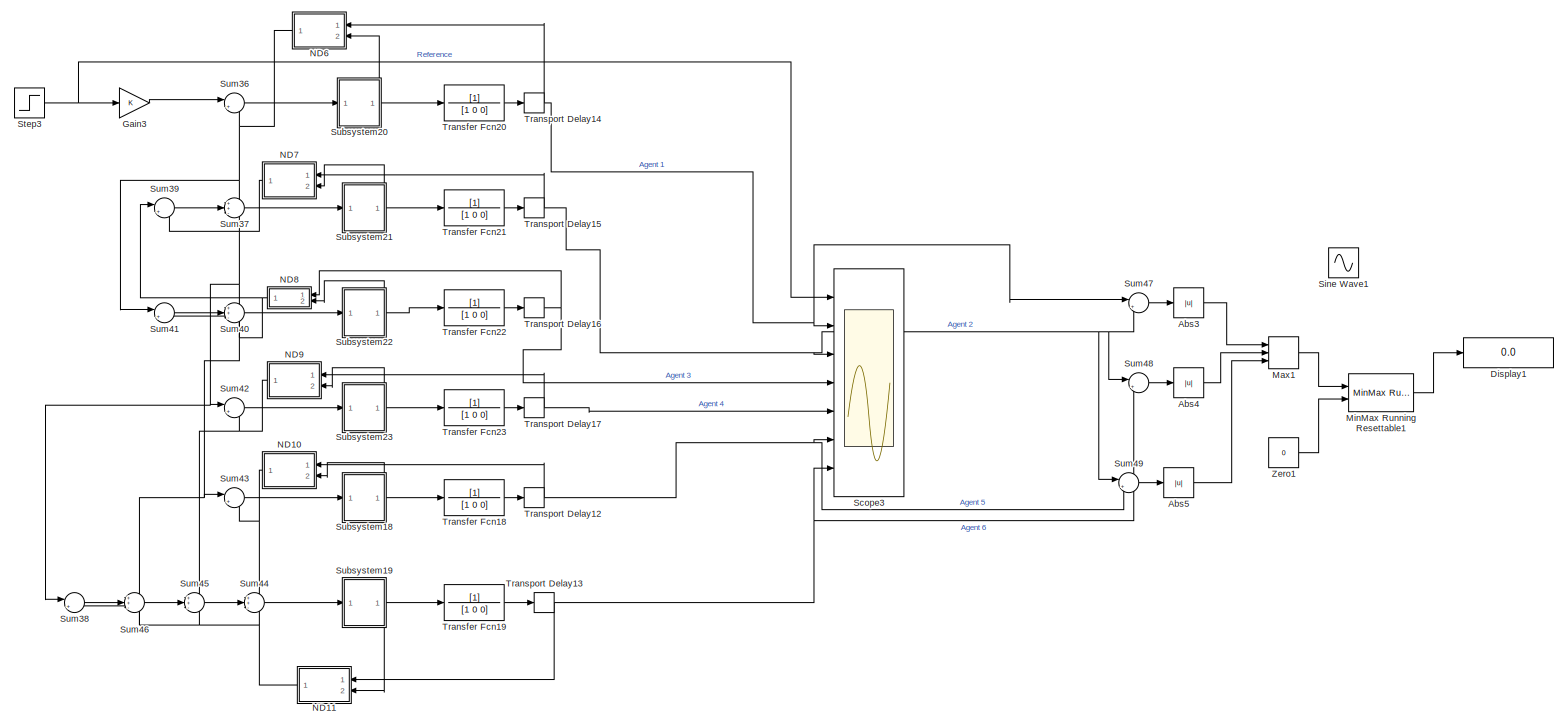
[diagram: root canvas - part 1/4, right side, full height]
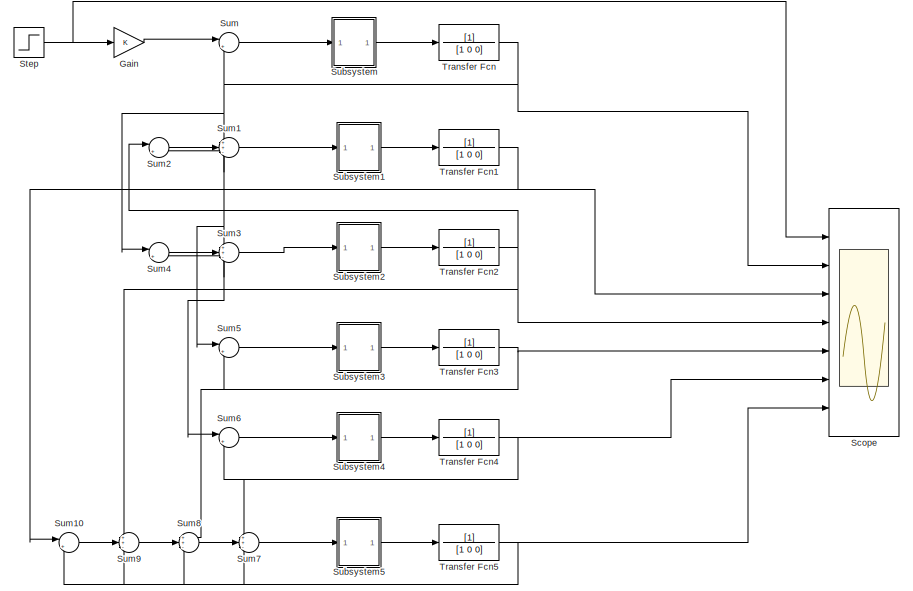
[diagram: root canvas - part 2/4, middle left region]
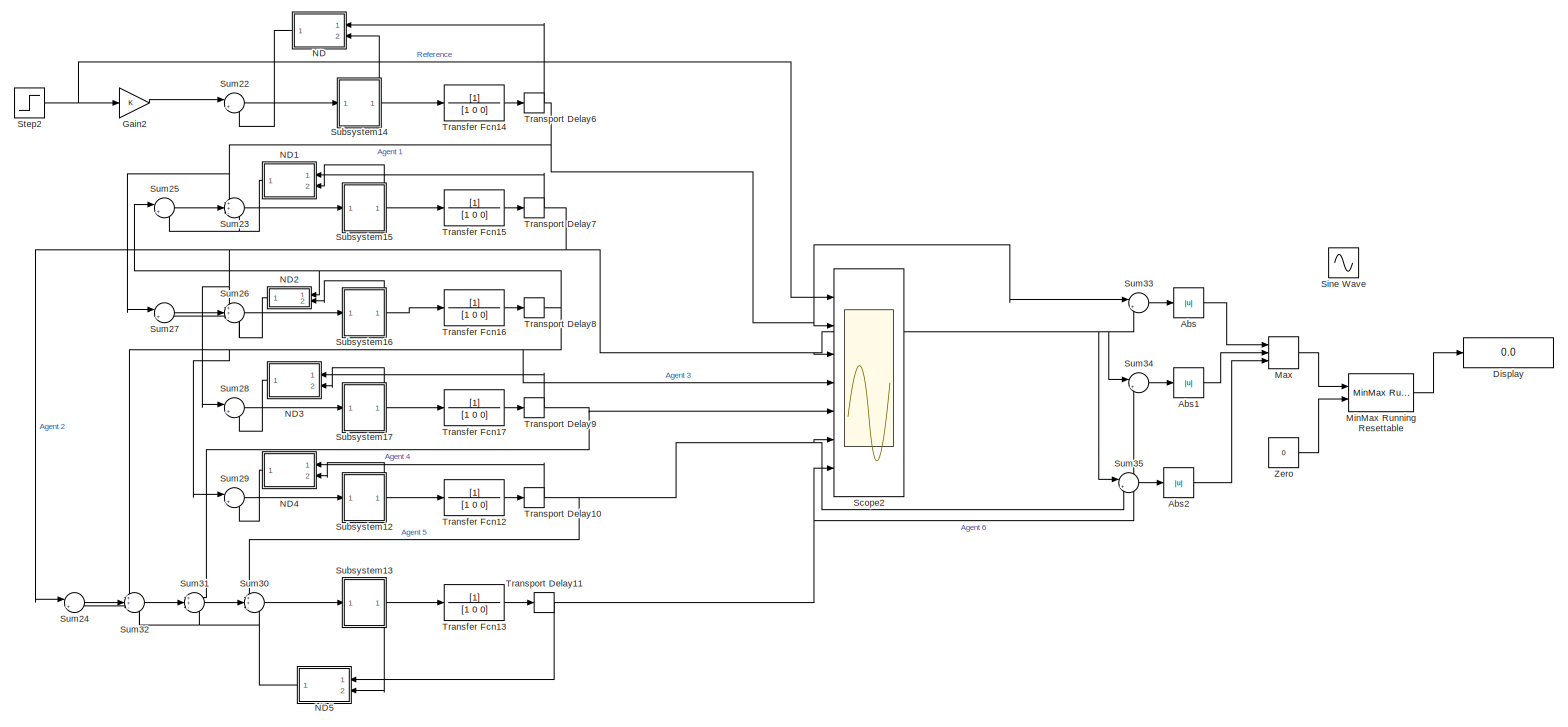
[diagram: root canvas - part 3/4, center side, full height]
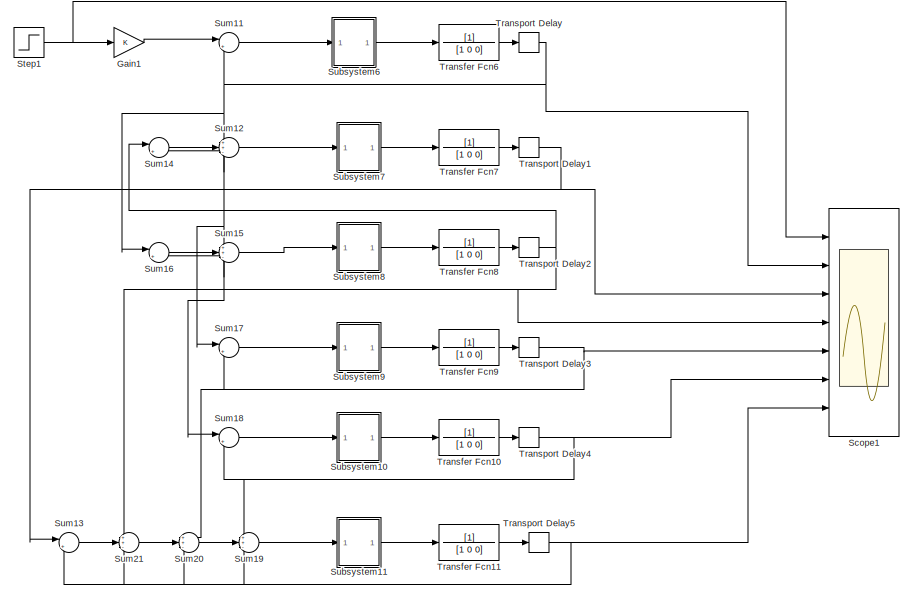
[diagram: root canvas - part 4/4, middle left region]
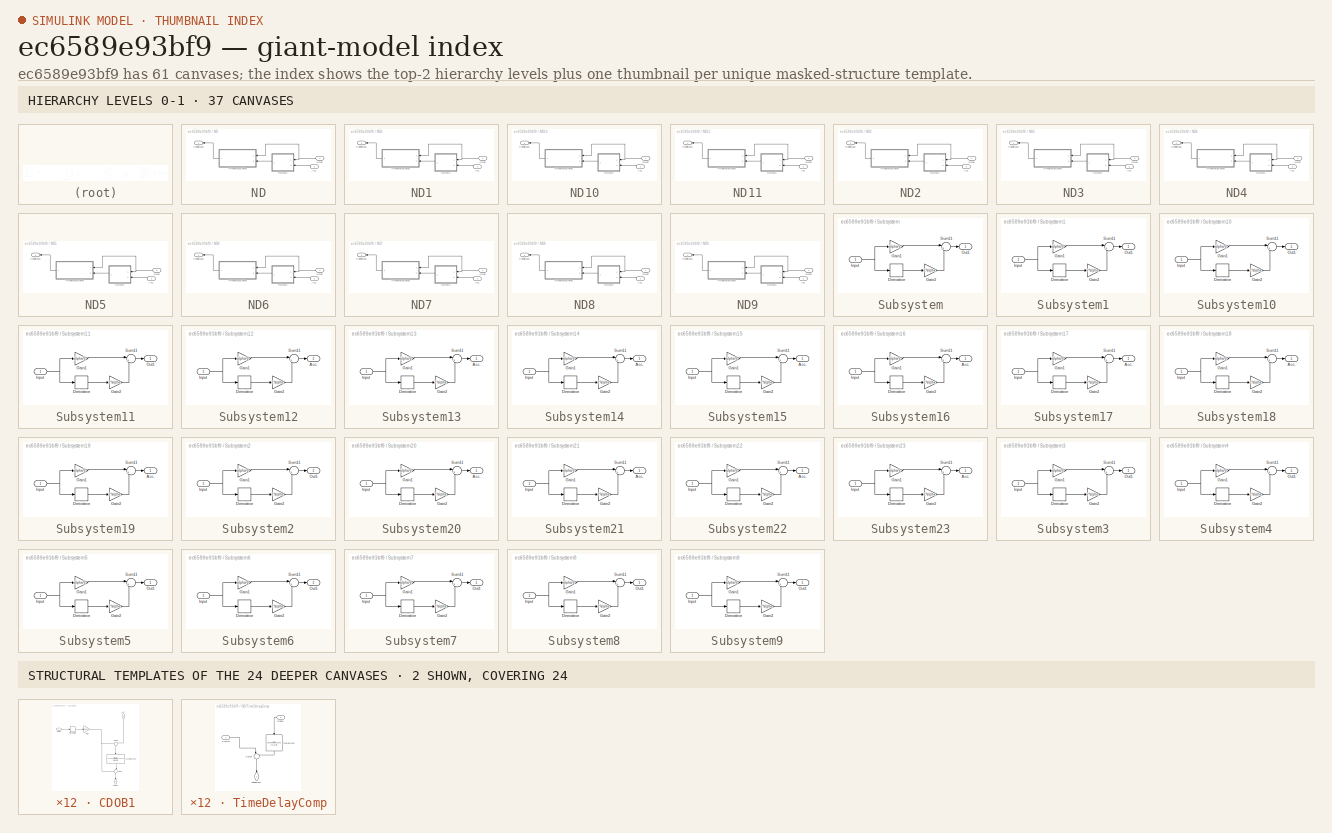
[diagram: thumbnail index - top-2 hierarchy levels (37 canvases) + 2 structural-template representatives of the remaining 24 canvases]
MODEL slx_ec6589e93bf9
KIND model
CONFIG AbsTol = auto
CONFIG EnableMultiTasking = off
CONFIG FixedStep = auto
CONFIG MaxStep = auto
CONFIG MinStep = auto
CONFIG RelTol = 1e-3
CONFIG SampleTimeConstraint = Unconstrained
CONFIG SolverName = VariableStepAuto
CONFIG StartTime = 0.0
CONFIG StopTime = 10
BLOCK [Abs] Abs
  Commented = on
  SaturateOnIntegerOverflow = off
BLOCK [Abs] Abs1
  Commented = on
  SaturateOnIntegerOverflow = off
BLOCK [Abs] Abs2
  Commented = on
  SaturateOnIntegerOverflow = off
BLOCK [Abs] Abs3
  SaturateOnIntegerOverflow = off
BLOCK [Abs] Abs4
  SaturateOnIntegerOverflow = off
BLOCK [Abs] Abs5
  SaturateOnIntegerOverflow = off
BLOCK [Display] Display
  Commented = on
  Decimation = 1
  Ports = [1]
BLOCK [Display] Display1
  Decimation = 1
  Ports = [1]
BLOCK [Gain] Gain
  Commented = on
BLOCK [Gain] Gain1
  Commented = on
BLOCK [Gain] Gain2
  Commented = on
BLOCK [Gain] Gain3
BLOCK [MinMax] Max
  Commented = on
  Function = max
  Inputs = 3
  Ports = [3, 1]
BLOCK [MinMax] Max1
  Function = max
  Inputs = 3
  Ports = [3, 1]
BLOCK [Reference] MinMax Running Resettable  REF=simulink/Math
Operations/MinMax
Running
Resettable
  Commented = on
  Ports = [2, 1]
  SourceBlock = simulink/Math\nOperations/MinMax\nRunning\nResettable
  SourceProductBaseCode = SL
  SourceType = MinMax Running Resettable
BLOCK [Reference] MinMax Running Resettable1  REF=simulink/Math
Operations/MinMax
Running
Resettable
  Ports = [2, 1]
  SourceBlock = simulink/Math\nOperations/MinMax\nRunning\nResettable
  SourceProductBaseCode = SL
  SourceType = MinMax Running Resettable
BLOCK [SubSystem] ND
  Commented = on
  NameLocation = top
  Ports = [2, 1]
  RequestExecContextInheritance = off
BLOCK [Inport] ND/Acc.
  Port = 2
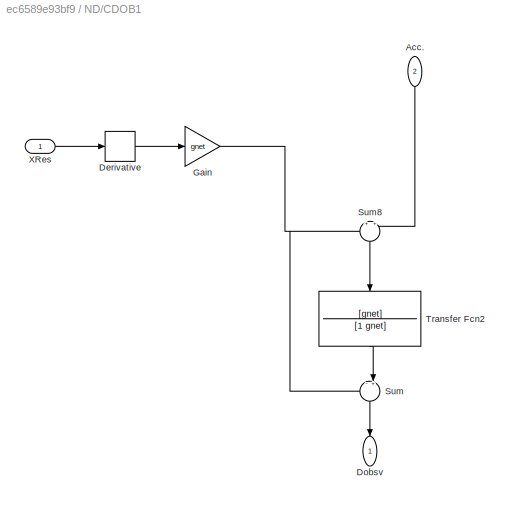
BLOCK [SubSystem] ND/CDOB1
  NameLocation = top
  Ports = [2, 1]
  RequestExecContextInheritance = off
BLOCK [Inport] ND/CDOB1/Acc.
  NameLocation = left
  Port = 2
BLOCK [Derivative] ND/CDOB1/Derivative
  CoefficientInTFapproximation = 0
BLOCK [Outport] ND/CDOB1/Dobsv
  NameLocation = left
BLOCK [Gain] ND/CDOB1/Gain
  Gain = gnet
BLOCK [Sum] ND/CDOB1/Sum
  Inputs = -+|
  NameLocation = left
  Ports = [2, 1]
BLOCK [Sum] ND/CDOB1/Sum8
  Inputs = +|+
  NameLocation = left
  Ports = [2, 1]
BLOCK [TransferFcn] ND/CDOB1/Transfer Fcn2
  Denominator = [1 gnet]
  NameLocation = left
  Numerator = [gnet]
BLOCK [Inport] ND/CDOB1/XRes
BLOCK [Outport] ND/FeedBack
BLOCK [SubSystem] ND/TimeDelayComp
  NameLocation = top
  Ports = [2, 1]
  RequestExecContextInheritance = off
BLOCK [TransferFcn] ND/TimeDelayComp/DelayCom
  Denominator = [1 0 0]
  NameLocation = left
BLOCK [Inport] ND/TimeDelayComp/Dobsv
  NameLocation = top
  Port = 2
BLOCK [Outport] ND/TimeDelayComp/FeedBack
  NameLocation = left
BLOCK [Sum] ND/TimeDelayComp/Sum8
  Inputs = |++
  NameLocation = left
  Ports = [2, 1]
BLOCK [Inport] ND/TimeDelayComp/SysOut
BLOCK [Inport] ND/XRes
BLOCK [SubSystem] ND1
  Commented = on
  NameLocation = top
  Ports = [2, 1]
  RequestExecContextInheritance = off
BLOCK [Inport] ND1/Acc.
  Port = 2
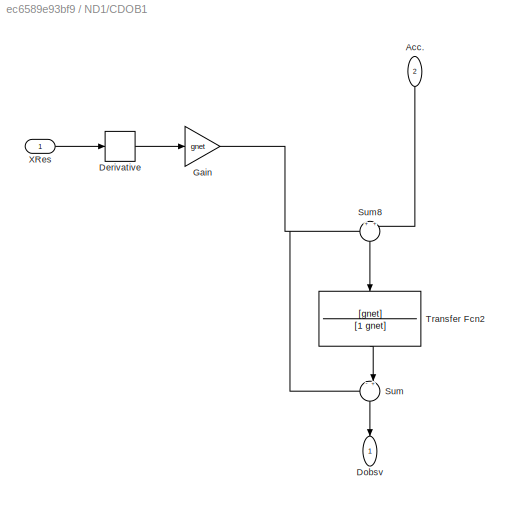
BLOCK [SubSystem] ND1/CDOB1
  NameLocation = top
  Ports = [2, 1]
  RequestExecContextInheritance = off
BLOCK [Inport] ND1/CDOB1/Acc.
  NameLocation = left
  Port = 2
BLOCK [Derivative] ND1/CDOB1/Derivative
  CoefficientInTFapproximation = 0
BLOCK [Outport] ND1/CDOB1/Dobsv
  NameLocation = left
BLOCK [Gain] ND1/CDOB1/Gain
  Gain = gnet
BLOCK [Sum] ND1/CDOB1/Sum
  Inputs = -+|
  NameLocation = left
  Ports = [2, 1]
BLOCK [Sum] ND1/CDOB1/Sum8
  Inputs = +|+
  NameLocation = left
  Ports = [2, 1]
BLOCK [TransferFcn] ND1/CDOB1/Transfer Fcn2
  Denominator = [1 gnet]
  NameLocation = left
  Numerator = [gnet]
BLOCK [Inport] ND1/CDOB1/XRes
BLOCK [Outport] ND1/FeedBack
BLOCK [SubSystem] ND1/TimeDelayComp
  NameLocation = top
  Ports = [2, 1]
  RequestExecContextInheritance = off
BLOCK [TransferFcn] ND1/TimeDelayComp/DelayCom
  Denominator = [1 0 0]
  NameLocation = left
BLOCK [Inport] ND1/TimeDelayComp/Dobsv
  NameLocation = top
  Port = 2
BLOCK [Outport] ND1/TimeDelayComp/FeedBack
  NameLocation = left
BLOCK [Sum] ND1/TimeDelayComp/Sum8
  Inputs = |++
  NameLocation = left
  Ports = [2, 1]
BLOCK [Inport] ND1/TimeDelayComp/SysOut
BLOCK [Inport] ND1/XRes
BLOCK [SubSystem] ND10
  NameLocation = top
  Ports = [2, 1]
  RequestExecContextInheritance = off
BLOCK [Inport] ND10/Acc.
  Port = 2
BLOCK [SubSystem] ND10/CDOB1
  NameLocation = top
  Ports = [2, 1]
  RequestExecContextInheritance = off
BLOCK [Inport] ND10/CDOB1/Acc.
  NameLocation = left
  Port = 2
BLOCK [Derivative] ND10/CDOB1/Derivative
  CoefficientInTFapproximation = 0
BLOCK [Outport] ND10/CDOB1/Dobsv
  NameLocation = left
BLOCK [Gain] ND10/CDOB1/Gain
  Gain = gnet
BLOCK [Sum] ND10/CDOB1/Sum
  Inputs = -+|
  NameLocation = left
  Ports = [2, 1]
BLOCK [Sum] ND10/CDOB1/Sum8
  Inputs = +|+
  NameLocation = left
  Ports = [2, 1]
BLOCK [TransferFcn] ND10/CDOB1/Transfer Fcn2
  Denominator = [1 gnet]
  NameLocation = left
  Numerator = [gnet]
BLOCK [Inport] ND10/CDOB1/XRes
BLOCK [Outport] ND10/FeedBack
BLOCK [SubSystem] ND10/TimeDelayComp
  NameLocation = top
  Ports = [2, 1]
  RequestExecContextInheritance = off
BLOCK [TransferFcn] ND10/TimeDelayComp/DelayCom
  Denominator = [1 0 0]
  NameLocation = left
BLOCK [Inport] ND10/TimeDelayComp/Dobsv
  NameLocation = top
  Port = 2
BLOCK [Outport] ND10/TimeDelayComp/FeedBack
  NameLocation = left
BLOCK [Sum] ND10/TimeDelayComp/Sum8
  Inputs = |++
  NameLocation = left
  Ports = [2, 1]
BLOCK [Inport] ND10/TimeDelayComp/SysOut
BLOCK [Inport] ND10/XRes
BLOCK [SubSystem] ND11
  NameLocation = top
  Ports = [2, 1]
  RequestExecContextInheritance = off
BLOCK [Inport] ND11/Acc.
  Port = 2
BLOCK [SubSystem] ND11/CDOB1
  NameLocation = top
  Ports = [2, 1]
  RequestExecContextInheritance = off
BLOCK [Inport] ND11/CDOB1/Acc.
  NameLocation = left
  Port = 2
BLOCK [Derivative] ND11/CDOB1/Derivative
  CoefficientInTFapproximation = 0
BLOCK [Outport] ND11/CDOB1/Dobsv
  NameLocation = left
BLOCK [Gain] ND11/CDOB1/Gain
  Gain = gnet
BLOCK [Sum] ND11/CDOB1/Sum
  Inputs = -+|
  NameLocation = left
  Ports = [2, 1]
BLOCK [Sum] ND11/CDOB1/Sum8
  Inputs = +|+
  NameLocation = left
  Ports = [2, 1]
BLOCK [TransferFcn] ND11/CDOB1/Transfer Fcn2
  Denominator = [1 gnet]
  NameLocation = left
  Numerator = [gnet]
BLOCK [Inport] ND11/CDOB1/XRes
BLOCK [Outport] ND11/FeedBack
BLOCK [SubSystem] ND11/TimeDelayComp
  NameLocation = top
  Ports = [2, 1]
  RequestExecContextInheritance = off
BLOCK [TransferFcn] ND11/TimeDelayComp/DelayCom
  Denominator = [1 0 0]
  NameLocation = left
BLOCK [Inport] ND11/TimeDelayComp/Dobsv
  NameLocation = top
  Port = 2
BLOCK [Outport] ND11/TimeDelayComp/FeedBack
  NameLocation = left
BLOCK [Sum] ND11/TimeDelayComp/Sum8
  Inputs = |++
  NameLocation = left
  Ports = [2, 1]
BLOCK [Inport] ND11/TimeDelayComp/SysOut
BLOCK [Inport] ND11/XRes
BLOCK [SubSystem] ND2
  Commented = on
  NameLocation = top
  Ports = [2, 1]
  RequestExecContextInheritance = off
BLOCK [Inport] ND2/Acc.
  Port = 2
BLOCK [SubSystem] ND2/CDOB1
  NameLocation = top
  Ports = [2, 1]
  RequestExecContextInheritance = off
BLOCK [Inport] ND2/CDOB1/Acc.
  NameLocation = left
  Port = 2
BLOCK [Derivative] ND2/CDOB1/Derivative
  CoefficientInTFapproximation = 0
BLOCK [Outport] ND2/CDOB1/Dobsv
  NameLocation = left
BLOCK [Gain] ND2/CDOB1/Gain
  Gain = gnet
BLOCK [Sum] ND2/CDOB1/Sum
  Inputs = -+|
  NameLocation = left
  Ports = [2, 1]
BLOCK [Sum] ND2/CDOB1/Sum8
  Inputs = +|+
  NameLocation = left
  Ports = [2, 1]
BLOCK [TransferFcn] ND2/CDOB1/Transfer Fcn2
  Denominator = [1 gnet]
  NameLocation = left
  Numerator = [gnet]
BLOCK [Inport] ND2/CDOB1/XRes
BLOCK [Outport] ND2/FeedBack
BLOCK [SubSystem] ND2/TimeDelayComp
  NameLocation = top
  Ports = [2, 1]
  RequestExecContextInheritance = off
BLOCK [TransferFcn] ND2/TimeDelayComp/DelayCom
  Denominator = [1 0 0]
  NameLocation = left
BLOCK [Inport] ND2/TimeDelayComp/Dobsv
  NameLocation = top
  Port = 2
BLOCK [Outport] ND2/TimeDelayComp/FeedBack
  NameLocation = left
BLOCK [Sum] ND2/TimeDelayComp/Sum8
  Inputs = |++
  NameLocation = left
  Ports = [2, 1]
BLOCK [Inport] ND2/TimeDelayComp/SysOut
BLOCK [Inport] ND2/XRes
BLOCK [SubSystem] ND3
  Commented = on
  NameLocation = top
  Ports = [2, 1]
  RequestExecContextInheritance = off
BLOCK [Inport] ND3/Acc.
  Port = 2
BLOCK [SubSystem] ND3/CDOB1
  NameLocation = top
  Ports = [2, 1]
  RequestExecContextInheritance = off
BLOCK [Inport] ND3/CDOB1/Acc.
  NameLocation = left
  Port = 2
BLOCK [Derivative] ND3/CDOB1/Derivative
  CoefficientInTFapproximation = 0
BLOCK [Outport] ND3/CDOB1/Dobsv
  NameLocation = left
BLOCK [Gain] ND3/CDOB1/Gain
  Gain = gnet
BLOCK [Sum] ND3/CDOB1/Sum
  Inputs = -+|
  NameLocation = left
  Ports = [2, 1]
BLOCK [Sum] ND3/CDOB1/Sum8
  Inputs = +|+
  NameLocation = left
  Ports = [2, 1]
BLOCK [TransferFcn] ND3/CDOB1/Transfer Fcn2
  Denominator = [1 gnet]
  NameLocation = left
  Numerator = [gnet]
BLOCK [Inport] ND3/CDOB1/XRes
BLOCK [Outport] ND3/FeedBack
BLOCK [SubSystem] ND3/TimeDelayComp
  NameLocation = top
  Ports = [2, 1]
  RequestExecContextInheritance = off
BLOCK [TransferFcn] ND3/TimeDelayComp/DelayCom
  Denominator = [1 0 0]
  NameLocation = left
BLOCK [Inport] ND3/TimeDelayComp/Dobsv
  NameLocation = top
  Port = 2
BLOCK [Outport] ND3/TimeDelayComp/FeedBack
  NameLocation = left
BLOCK [Sum] ND3/TimeDelayComp/Sum8
  Inputs = |++
  NameLocation = left
  Ports = [2, 1]
BLOCK [Inport] ND3/TimeDelayComp/SysOut
BLOCK [Inport] ND3/XRes
BLOCK [SubSystem] ND4
  Commented = on
  NameLocation = top
  Ports = [2, 1]
  RequestExecContextInheritance = off
BLOCK [Inport] ND4/Acc.
  Port = 2
BLOCK [SubSystem] ND4/CDOB1
  NameLocation = top
  Ports = [2, 1]
  RequestExecContextInheritance = off
BLOCK [Inport] ND4/CDOB1/Acc.
  NameLocation = left
  Port = 2
BLOCK [Derivative] ND4/CDOB1/Derivative
  CoefficientInTFapproximation = 0
BLOCK [Outport] ND4/CDOB1/Dobsv
  NameLocation = left
BLOCK [Gain] ND4/CDOB1/Gain
  Gain = gnet
BLOCK [Sum] ND4/CDOB1/Sum
  Inputs = -+|
  NameLocation = left
  Ports = [2, 1]
BLOCK [Sum] ND4/CDOB1/Sum8
  Inputs = +|+
  NameLocation = left
  Ports = [2, 1]
BLOCK [TransferFcn] ND4/CDOB1/Transfer Fcn2
  Denominator = [1 gnet]
  NameLocation = left
  Numerator = [gnet]
BLOCK [Inport] ND4/CDOB1/XRes
BLOCK [Outport] ND4/FeedBack
BLOCK [SubSystem] ND4/TimeDelayComp
  NameLocation = top
  Ports = [2, 1]
  RequestExecContextInheritance = off
BLOCK [TransferFcn] ND4/TimeDelayComp/DelayCom
  Denominator = [1 0 0]
  NameLocation = left
BLOCK [Inport] ND4/TimeDelayComp/Dobsv
  NameLocation = top
  Port = 2
BLOCK [Outport] ND4/TimeDelayComp/FeedBack
  NameLocation = left
BLOCK [Sum] ND4/TimeDelayComp/Sum8
  Inputs = |++
  NameLocation = left
  Ports = [2, 1]
BLOCK [Inport] ND4/TimeDelayComp/SysOut
BLOCK [Inport] ND4/XRes
BLOCK [SubSystem] ND5
  Commented = on
  NameLocation = top
  Ports = [2, 1]
  RequestExecContextInheritance = off
BLOCK [Inport] ND5/Acc.
  Port = 2
BLOCK [SubSystem] ND5/CDOB1
  NameLocation = top
  Ports = [2, 1]
  RequestExecContextInheritance = off
BLOCK [Inport] ND5/CDOB1/Acc.
  NameLocation = left
  Port = 2
BLOCK [Derivative] ND5/CDOB1/Derivative
  CoefficientInTFapproximation = 0
BLOCK [Outport] ND5/CDOB1/Dobsv
  NameLocation = left
BLOCK [Gain] ND5/CDOB1/Gain
  Gain = gnet
BLOCK [Sum] ND5/CDOB1/Sum
  Inputs = -+|
  NameLocation = left
  Ports = [2, 1]
BLOCK [Sum] ND5/CDOB1/Sum8
  Inputs = +|+
  NameLocation = left
  Ports = [2, 1]
BLOCK [TransferFcn] ND5/CDOB1/Transfer Fcn2
  Denominator = [1 gnet]
  NameLocation = left
  Numerator = [gnet]
BLOCK [Inport] ND5/CDOB1/XRes
BLOCK [Outport] ND5/FeedBack
BLOCK [SubSystem] ND5/TimeDelayComp
  NameLocation = top
  Ports = [2, 1]
  RequestExecContextInheritance = off
BLOCK [TransferFcn] ND5/TimeDelayComp/DelayCom
  Denominator = [1 0 0]
  NameLocation = left
BLOCK [Inport] ND5/TimeDelayComp/Dobsv
  NameLocation = top
  Port = 2
BLOCK [Outport] ND5/TimeDelayComp/FeedBack
  NameLocation = left
BLOCK [Sum] ND5/TimeDelayComp/Sum8
  Inputs = |++
  NameLocation = left
  Ports = [2, 1]
BLOCK [Inport] ND5/TimeDelayComp/SysOut
BLOCK [Inport] ND5/XRes
BLOCK [SubSystem] ND6
  NameLocation = top
  Ports = [2, 1]
  RequestExecContextInheritance = off
BLOCK [Inport] ND6/Acc.
  Port = 2
BLOCK [SubSystem] ND6/CDOB1
  NameLocation = top
  Ports = [2, 1]
  RequestExecContextInheritance = off
BLOCK [Inport] ND6/CDOB1/Acc.
  NameLocation = left
  Port = 2
BLOCK [Derivative] ND6/CDOB1/Derivative
  CoefficientInTFapproximation = 0
BLOCK [Outport] ND6/CDOB1/Dobsv
  NameLocation = left
BLOCK [Gain] ND6/CDOB1/Gain
  Gain = gnet
BLOCK [Sum] ND6/CDOB1/Sum
  Inputs = -+|
  NameLocation = left
  Ports = [2, 1]
BLOCK [Sum] ND6/CDOB1/Sum8
  Inputs = +|+
  NameLocation = left
  Ports = [2, 1]
BLOCK [TransferFcn] ND6/CDOB1/Transfer Fcn2
  Denominator = [1 gnet]
  NameLocation = left
  Numerator = [gnet]
BLOCK [Inport] ND6/CDOB1/XRes
BLOCK [Outport] ND6/FeedBack
BLOCK [SubSystem] ND6/TimeDelayComp
  NameLocation = top
  Ports = [2, 1]
  RequestExecContextInheritance = off
BLOCK [TransferFcn] ND6/TimeDelayComp/DelayCom
  Denominator = [1 0 0]
  NameLocation = left
BLOCK [Inport] ND6/TimeDelayComp/Dobsv
  NameLocation = top
  Port = 2
BLOCK [Outport] ND6/TimeDelayComp/FeedBack
  NameLocation = left
BLOCK [Sum] ND6/TimeDelayComp/Sum8
  Inputs = |++
  NameLocation = left
  Ports = [2, 1]
BLOCK [Inport] ND6/TimeDelayComp/SysOut
BLOCK [Inport] ND6/XRes
BLOCK [SubSystem] ND7
  NameLocation = top
  Ports = [2, 1]
  RequestExecContextInheritance = off
BLOCK [Inport] ND7/Acc.
  Port = 2
BLOCK [SubSystem] ND7/CDOB1
  NameLocation = top
  Ports = [2, 1]
  RequestExecContextInheritance = off
BLOCK [Inport] ND7/CDOB1/Acc.
  NameLocation = left
  Port = 2
BLOCK [Derivative] ND7/CDOB1/Derivative
  CoefficientInTFapproximation = 0
BLOCK [Outport] ND7/CDOB1/Dobsv
  NameLocation = left
BLOCK [Gain] ND7/CDOB1/Gain
  Gain = gnet
BLOCK [Sum] ND7/CDOB1/Sum
  Inputs = -+|
  NameLocation = left
  Ports = [2, 1]
BLOCK [Sum] ND7/CDOB1/Sum8
  Inputs = +|+
  NameLocation = left
  Ports = [2, 1]
BLOCK [TransferFcn] ND7/CDOB1/Transfer Fcn2
  Denominator = [1 gnet]
  NameLocation = left
  Numerator = [gnet]
BLOCK [Inport] ND7/CDOB1/XRes
BLOCK [Outport] ND7/FeedBack
BLOCK [SubSystem] ND7/TimeDelayComp
  NameLocation = top
  Ports = [2, 1]
  RequestExecContextInheritance = off
BLOCK [TransferFcn] ND7/TimeDelayComp/DelayCom
  Denominator = [1 0 0]
  NameLocation = left
BLOCK [Inport] ND7/TimeDelayComp/Dobsv
  NameLocation = top
  Port = 2
BLOCK [Outport] ND7/TimeDelayComp/FeedBack
  NameLocation = left
BLOCK [Sum] ND7/TimeDelayComp/Sum8
  Inputs = |++
  NameLocation = left
  Ports = [2, 1]
BLOCK [Inport] ND7/TimeDelayComp/SysOut
BLOCK [Inport] ND7/XRes
BLOCK [SubSystem] ND8
  NameLocation = top
  Ports = [2, 1]
  RequestExecContextInheritance = off
BLOCK [Inport] ND8/Acc.
  Port = 2
BLOCK [SubSystem] ND8/CDOB1
  NameLocation = top
  Ports = [2, 1]
  RequestExecContextInheritance = off
BLOCK [Inport] ND8/CDOB1/Acc.
  NameLocation = left
  Port = 2
BLOCK [Derivative] ND8/CDOB1/Derivative
  CoefficientInTFapproximation = 0
BLOCK [Outport] ND8/CDOB1/Dobsv
  NameLocation = left
BLOCK [Gain] ND8/CDOB1/Gain
  Gain = gnet
BLOCK [Sum] ND8/CDOB1/Sum
  Inputs = -+|
  NameLocation = left
  Ports = [2, 1]
BLOCK [Sum] ND8/CDOB1/Sum8
  Inputs = +|+
  NameLocation = left
  Ports = [2, 1]
BLOCK [TransferFcn] ND8/CDOB1/Transfer Fcn2
  Denominator = [1 gnet]
  NameLocation = left
  Numerator = [gnet]
BLOCK [Inport] ND8/CDOB1/XRes
BLOCK [Outport] ND8/FeedBack
BLOCK [SubSystem] ND8/TimeDelayComp
  NameLocation = top
  Ports = [2, 1]
  RequestExecContextInheritance = off
BLOCK [TransferFcn] ND8/TimeDelayComp/DelayCom
  Denominator = [1 0 0]
  NameLocation = left
BLOCK [Inport] ND8/TimeDelayComp/Dobsv
  NameLocation = top
  Port = 2
BLOCK [Outport] ND8/TimeDelayComp/FeedBack
  NameLocation = left
BLOCK [Sum] ND8/TimeDelayComp/Sum8
  Inputs = |++
  NameLocation = left
  Ports = [2, 1]
BLOCK [Inport] ND8/TimeDelayComp/SysOut
BLOCK [Inport] ND8/XRes
BLOCK [SubSystem] ND9
  NameLocation = top
  Ports = [2, 1]
  RequestExecContextInheritance = off
BLOCK [Inport] ND9/Acc.
  Port = 2
BLOCK [SubSystem] ND9/CDOB1
  NameLocation = top
  Ports = [2, 1]
  RequestExecContextInheritance = off
BLOCK [Inport] ND9/CDOB1/Acc.
  NameLocation = left
  Port = 2
BLOCK [Derivative] ND9/CDOB1/Derivative
  CoefficientInTFapproximation = 0
BLOCK [Outport] ND9/CDOB1/Dobsv
  NameLocation = left
BLOCK [Gain] ND9/CDOB1/Gain
  Gain = gnet
BLOCK [Sum] ND9/CDOB1/Sum
  Inputs = -+|
  NameLocation = left
  Ports = [2, 1]
BLOCK [Sum] ND9/CDOB1/Sum8
  Inputs = +|+
  NameLocation = left
  Ports = [2, 1]
BLOCK [TransferFcn] ND9/CDOB1/Transfer Fcn2
  Denominator = [1 gnet]
  NameLocation = left
  Numerator = [gnet]
BLOCK [Inport] ND9/CDOB1/XRes
BLOCK [Outport] ND9/FeedBack
BLOCK [SubSystem] ND9/TimeDelayComp
  NameLocation = top
  Ports = [2, 1]
  RequestExecContextInheritance = off
BLOCK [TransferFcn] ND9/TimeDelayComp/DelayCom
  Denominator = [1 0 0]
  NameLocation = left
BLOCK [Inport] ND9/TimeDelayComp/Dobsv
  NameLocation = top
  Port = 2
BLOCK [Outport] ND9/TimeDelayComp/FeedBack
  NameLocation = left
BLOCK [Sum] ND9/TimeDelayComp/Sum8
  Inputs = |++
  NameLocation = left
  Ports = [2, 1]
BLOCK [Inport] ND9/TimeDelayComp/SysOut
BLOCK [Inport] ND9/XRes
BLOCK [Scope] Scope
  Commented = on
  Floating = off
  NumInputPorts = 7
  Ports = [7]
  ScopeSpecificationString = Simulink.scopes.TimeScopeBlockCfg('CurrentConfiguration', extmgr.ConfigurationSet(extmgr.Configuration('Core','General UI',true),extmgr.Configuration('Core','Source UI',true),extmgr.Configuration('Sources','WiredSimulink',true),extmgr.Configuration('Visuals','Time Domain',true,'SerializedDisplays',{struct('MinYLimReal','-0.13236','MaxYLimReal','1.19127','YLabelReal','','MinYLimMag','0.00000','MaxY...<+1417ch>
BLOCK [Scope] Scope1
  Commented = on
  Floating = off
  NumInputPorts = 7
  Ports = [7]
  ScopeSpecificationString = Simulink.scopes.TimeScopeBlockCfg('CurrentConfiguration', extmgr.ConfigurationSet(extmgr.Configuration('Core','General UI',true),extmgr.Configuration('Core','Source UI',true),extmgr.Configuration('Sources','WiredSimulink',true,'DataLoggingVariableName','ScopeData1'),extmgr.Configuration('Visuals','Time Domain',true,'SerializedDisplays',{struct('MinYLimReal','-36923625282214638660261148383044100591...<+1813ch>
BLOCK [Scope] Scope2
  Commented = on
  Floating = off
  NumInputPorts = 7
  Ports = [7]
  ScopeSpecificationString = Simulink.scopes.TimeScopeBlockCfg('CurrentConfiguration', extmgr.ConfigurationSet(extmgr.Configuration('Core','General UI',true),extmgr.Configuration('Core','Source UI',true),extmgr.Configuration('Sources','WiredSimulink',true,'DataLoggingVariableName','ScopeData2'),extmgr.Configuration('Visuals','Time Domain',true,'SerializedDisplays',{struct('MinYLimReal','-1.36817','MaxYLimReal','12.3135','YLab...<+1457ch>
BLOCK [Scope] Scope3
  Floating = off
  NumInputPorts = 7
  Ports = [7]
  ScopeSpecificationString = Simulink.scopes.TimeScopeBlockCfg('CurrentConfiguration', extmgr.ConfigurationSet(extmgr.Configuration('Core','General UI',true),extmgr.Configuration('Core','Source UI',true),extmgr.Configuration('Sources','WiredSimulink',true,'DataLoggingVariableName','ScopeData1'),extmgr.Configuration('Visuals','Time Domain',true,'SerializedDisplays',{struct('MinYLimReal','-1.36788','MaxYLimReal','12.31094','YLa...<+1463ch>
BLOCK [Sin] Sine Wave
  Commented = on
  Ports = [0, 1]
  SampleTime = 0
BLOCK [Sin] Sine Wave1
  Ports = [0, 1]
  SampleTime = 0
BLOCK [Step] Step
  Commented = on
  SampleTime = 0
BLOCK [Step] Step1
  Commented = on
  SampleTime = 0
BLOCK [Step] Step2
  After = 10
  Commented = on
  SampleTime = 0
  Time = 0
BLOCK [Step] Step3
  After = 10
  SampleTime = 0
  Time = 0
BLOCK [SubSystem] Subsystem
  Commented = on
  Ports = [1, 1]
  RequestExecContextInheritance = off
BLOCK [Derivative] Subsystem/Derivative
  CoefficientInTFapproximation = 0
BLOCK [Gain] Subsystem/Gain1
  Gain = alpha^2
BLOCK [Gain] Subsystem/Gain2
  Gain = 2*alpha
BLOCK [Inport] Subsystem/Input
BLOCK [Outport] Subsystem/Out1
BLOCK [Sum] Subsystem/Sum11
  Inputs = |++
  Ports = [2, 1]
BLOCK [SubSystem] Subsystem1
  Commented = on
  Ports = [1, 1]
  RequestExecContextInheritance = off
BLOCK [Derivative] Subsystem1/Derivative
  CoefficientInTFapproximation = 0
BLOCK [Gain] Subsystem1/Gain1
  Gain = alpha^2
BLOCK [Gain] Subsystem1/Gain2
  Gain = 2*alpha
BLOCK [Inport] Subsystem1/Input
BLOCK [Outport] Subsystem1/Out1
BLOCK [Sum] Subsystem1/Sum11
  Inputs = |++
  Ports = [2, 1]
BLOCK [SubSystem] Subsystem10
  Commented = on
  Ports = [1, 1]
  RequestExecContextInheritance = off
BLOCK [Derivative] Subsystem10/Derivative
  CoefficientInTFapproximation = 0
BLOCK [Gain] Subsystem10/Gain1
  Gain = alpha^2
BLOCK [Gain] Subsystem10/Gain2
  Gain = 2*alpha
BLOCK [Inport] Subsystem10/Input
BLOCK [Outport] Subsystem10/Out1
BLOCK [Sum] Subsystem10/Sum11
  Inputs = |++
  Ports = [2, 1]
BLOCK [SubSystem] Subsystem11
  Commented = on
  Ports = [1, 1]
  RequestExecContextInheritance = off
BLOCK [Derivative] Subsystem11/Derivative
  CoefficientInTFapproximation = 0
BLOCK [Gain] Subsystem11/Gain1
  Gain = alpha^2
BLOCK [Gain] Subsystem11/Gain2
  Gain = 2*alpha
BLOCK [Inport] Subsystem11/Input
BLOCK [Outport] Subsystem11/Out1
BLOCK [Sum] Subsystem11/Sum11
  Inputs = |++
  Ports = [2, 1]
BLOCK [SubSystem] Subsystem12
  Commented = on
  Ports = [1, 1]
  RequestExecContextInheritance = off
BLOCK [Outport] Subsystem12/Acc.
BLOCK [Derivative] Subsystem12/Derivative
  CoefficientInTFapproximation = 0
BLOCK [Gain] Subsystem12/Gain1
  Gain = alpha^2
BLOCK [Gain] Subsystem12/Gain2
  Gain = 2*alpha
BLOCK [Inport] Subsystem12/Input
BLOCK [Sum] Subsystem12/Sum11
  Inputs = |++
  Ports = [2, 1]
BLOCK [SubSystem] Subsystem13
  Commented = on
  Ports = [1, 1]
  RequestExecContextInheritance = off
BLOCK [Outport] Subsystem13/Acc.
BLOCK [Derivative] Subsystem13/Derivative
  CoefficientInTFapproximation = 0
BLOCK [Gain] Subsystem13/Gain1
  Gain = alpha^2
BLOCK [Gain] Subsystem13/Gain2
  Gain = 2*alpha
BLOCK [Inport] Subsystem13/Input
BLOCK [Sum] Subsystem13/Sum11
  Inputs = |++
  Ports = [2, 1]
BLOCK [SubSystem] Subsystem14
  Commented = on
  Ports = [1, 1]
  RequestExecContextInheritance = off
BLOCK [Outport] Subsystem14/Acc.
BLOCK [Derivative] Subsystem14/Derivative
  CoefficientInTFapproximation = 0
BLOCK [Gain] Subsystem14/Gain1
  Gain = alpha^2
BLOCK [Gain] Subsystem14/Gain2
  Gain = 2*alpha
BLOCK [Inport] Subsystem14/Input
BLOCK [Sum] Subsystem14/Sum11
  Inputs = |++
  Ports = [2, 1]
BLOCK [SubSystem] Subsystem15
  Commented = on
  Ports = [1, 1]
  RequestExecContextInheritance = off
BLOCK [Outport] Subsystem15/Acc.
BLOCK [Derivative] Subsystem15/Derivative
  CoefficientInTFapproximation = 0
BLOCK [Gain] Subsystem15/Gain1
  Gain = alpha^2
BLOCK [Gain] Subsystem15/Gain2
  Gain = 2*alpha
BLOCK [Inport] Subsystem15/Input
BLOCK [Sum] Subsystem15/Sum11
  Inputs = |++
  Ports = [2, 1]
BLOCK [SubSystem] Subsystem16
  Commented = on
  Ports = [1, 1]
  RequestExecContextInheritance = off
BLOCK [Outport] Subsystem16/Acc.
BLOCK [Derivative] Subsystem16/Derivative
  CoefficientInTFapproximation = 0
BLOCK [Gain] Subsystem16/Gain1
  Gain = alpha^2
BLOCK [Gain] Subsystem16/Gain2
  Gain = 2*alpha
BLOCK [Inport] Subsystem16/Input
BLOCK [Sum] Subsystem16/Sum11
  Inputs = |++
  Ports = [2, 1]
BLOCK [SubSystem] Subsystem17
  Commented = on
  Ports = [1, 1]
  RequestExecContextInheritance = off
BLOCK [Outport] Subsystem17/Acc.
BLOCK [Derivative] Subsystem17/Derivative
  CoefficientInTFapproximation = 0
BLOCK [Gain] Subsystem17/Gain1
  Gain = alpha^2
BLOCK [Gain] Subsystem17/Gain2
  Gain = 2*alpha
BLOCK [Inport] Subsystem17/Input
BLOCK [Sum] Subsystem17/Sum11
  Inputs = |++
  Ports = [2, 1]
BLOCK [SubSystem] Subsystem18
  Ports = [1, 1]
  RequestExecContextInheritance = off
BLOCK [Outport] Subsystem18/Acc.
BLOCK [Derivative] Subsystem18/Derivative
  CoefficientInTFapproximation = 0
BLOCK [Gain] Subsystem18/Gain1
  Gain = alpha^2
BLOCK [Gain] Subsystem18/Gain2
  Gain = 2*alpha
BLOCK [Inport] Subsystem18/Input
BLOCK [Sum] Subsystem18/Sum11
  Inputs = |++
  Ports = [2, 1]
BLOCK [SubSystem] Subsystem19
  Ports = [1, 1]
  RequestExecContextInheritance = off
BLOCK [Outport] Subsystem19/Acc.
BLOCK [Derivative] Subsystem19/Derivative
  CoefficientInTFapproximation = 0
BLOCK [Gain] Subsystem19/Gain1
  Gain = alpha^2
BLOCK [Gain] Subsystem19/Gain2
  Gain = 2*alpha
BLOCK [Inport] Subsystem19/Input
BLOCK [Sum] Subsystem19/Sum11
  Inputs = |++
  Ports = [2, 1]
BLOCK [SubSystem] Subsystem2
  Commented = on
  Ports = [1, 1]
  RequestExecContextInheritance = off
BLOCK [Derivative] Subsystem2/Derivative
  CoefficientInTFapproximation = 0
BLOCK [Gain] Subsystem2/Gain1
  Gain = alpha^2
BLOCK [Gain] Subsystem2/Gain2
  Gain = 2*alpha
BLOCK [Inport] Subsystem2/Input
BLOCK [Outport] Subsystem2/Out1
BLOCK [Sum] Subsystem2/Sum11
  Inputs = |++
  Ports = [2, 1]
BLOCK [SubSystem] Subsystem20
  Ports = [1, 1]
  RequestExecContextInheritance = off
BLOCK [Outport] Subsystem20/Acc.
BLOCK [Derivative] Subsystem20/Derivative
  CoefficientInTFapproximation = 0
BLOCK [Gain] Subsystem20/Gain1
  Gain = alpha^2
BLOCK [Gain] Subsystem20/Gain2
  Gain = 2*alpha
BLOCK [Inport] Subsystem20/Input
BLOCK [Sum] Subsystem20/Sum11
  Inputs = |++
  Ports = [2, 1]
BLOCK [SubSystem] Subsystem21
  Ports = [1, 1]
  RequestExecContextInheritance = off
BLOCK [Outport] Subsystem21/Acc.
BLOCK [Derivative] Subsystem21/Derivative
  CoefficientInTFapproximation = 0
BLOCK [Gain] Subsystem21/Gain1
  Gain = alpha^2
BLOCK [Gain] Subsystem21/Gain2
  Gain = 2*alpha
BLOCK [Inport] Subsystem21/Input
BLOCK [Sum] Subsystem21/Sum11
  Inputs = |++
  Ports = [2, 1]
BLOCK [SubSystem] Subsystem22
  Ports = [1, 1]
  RequestExecContextInheritance = off
BLOCK [Outport] Subsystem22/Acc.
BLOCK [Derivative] Subsystem22/Derivative
  CoefficientInTFapproximation = 0
BLOCK [Gain] Subsystem22/Gain1
  Gain = alpha^2
BLOCK [Gain] Subsystem22/Gain2
  Gain = 2*alpha
BLOCK [Inport] Subsystem22/Input
BLOCK [Sum] Subsystem22/Sum11
  Inputs = |++
  Ports = [2, 1]
BLOCK [SubSystem] Subsystem23
  Ports = [1, 1]
  RequestExecContextInheritance = off
BLOCK [Outport] Subsystem23/Acc.
BLOCK [Derivative] Subsystem23/Derivative
  CoefficientInTFapproximation = 0
BLOCK [Gain] Subsystem23/Gain1
  Gain = alpha^2
BLOCK [Gain] Subsystem23/Gain2
  Gain = 2*alpha
BLOCK [Inport] Subsystem23/Input
BLOCK [Sum] Subsystem23/Sum11
  Inputs = |++
  Ports = [2, 1]
BLOCK [SubSystem] Subsystem3
  Commented = on
  Ports = [1, 1]
  RequestExecContextInheritance = off
BLOCK [Derivative] Subsystem3/Derivative
  CoefficientInTFapproximation = 0
BLOCK [Gain] Subsystem3/Gain1
  Gain = alpha^2
BLOCK [Gain] Subsystem3/Gain2
  Gain = 2*alpha
BLOCK [Inport] Subsystem3/Input
BLOCK [Outport] Subsystem3/Out1
BLOCK [Sum] Subsystem3/Sum11
  Inputs = |++
  Ports = [2, 1]
BLOCK [SubSystem] Subsystem4
  Commented = on
  Ports = [1, 1]
  RequestExecContextInheritance = off
BLOCK [Derivative] Subsystem4/Derivative
  CoefficientInTFapproximation = 0
BLOCK [Gain] Subsystem4/Gain1
  Gain = alpha^2
BLOCK [Gain] Subsystem4/Gain2
  Gain = 2*alpha
BLOCK [Inport] Subsystem4/Input
BLOCK [Outport] Subsystem4/Out1
BLOCK [Sum] Subsystem4/Sum11
  Inputs = |++
  Ports = [2, 1]
BLOCK [SubSystem] Subsystem5
  Commented = on
  Ports = [1, 1]
  RequestExecContextInheritance = off
BLOCK [Derivative] Subsystem5/Derivative
  CoefficientInTFapproximation = 0
BLOCK [Gain] Subsystem5/Gain1
  Gain = alpha^2
BLOCK [Gain] Subsystem5/Gain2
  Gain = 2*alpha
BLOCK [Inport] Subsystem5/Input
BLOCK [Outport] Subsystem5/Out1
BLOCK [Sum] Subsystem5/Sum11
  Inputs = |++
  Ports = [2, 1]
BLOCK [SubSystem] Subsystem6
  Commented = on
  Ports = [1, 1]
  RequestExecContextInheritance = off
BLOCK [Derivative] Subsystem6/Derivative
  CoefficientInTFapproximation = 0
BLOCK [Gain] Subsystem6/Gain1
  Gain = alpha^2
BLOCK [Gain] Subsystem6/Gain2
  Gain = 2*alpha
BLOCK [Inport] Subsystem6/Input
BLOCK [Outport] Subsystem6/Out1
BLOCK [Sum] Subsystem6/Sum11
  Inputs = |++
  Ports = [2, 1]
BLOCK [SubSystem] Subsystem7
  Commented = on
  Ports = [1, 1]
  RequestExecContextInheritance = off
BLOCK [Derivative] Subsystem7/Derivative
  CoefficientInTFapproximation = 0
BLOCK [Gain] Subsystem7/Gain1
  Gain = alpha^2
BLOCK [Gain] Subsystem7/Gain2
  Gain = 2*alpha
BLOCK [Inport] Subsystem7/Input
BLOCK [Outport] Subsystem7/Out1
BLOCK [Sum] Subsystem7/Sum11
  Inputs = |++
  Ports = [2, 1]
BLOCK [SubSystem] Subsystem8
  Commented = on
  Ports = [1, 1]
  RequestExecContextInheritance = off
BLOCK [Derivative] Subsystem8/Derivative
  CoefficientInTFapproximation = 0
BLOCK [Gain] Subsystem8/Gain1
  Gain = alpha^2
BLOCK [Gain] Subsystem8/Gain2
  Gain = 2*alpha
BLOCK [Inport] Subsystem8/Input
BLOCK [Outport] Subsystem8/Out1
BLOCK [Sum] Subsystem8/Sum11
  Inputs = |++
  Ports = [2, 1]
BLOCK [SubSystem] Subsystem9
  Commented = on
  Ports = [1, 1]
  RequestExecContextInheritance = off
BLOCK [Derivative] Subsystem9/Derivative
  CoefficientInTFapproximation = 0
BLOCK [Gain] Subsystem9/Gain1
  Gain = alpha^2
BLOCK [Gain] Subsystem9/Gain2
  Gain = 2*alpha
BLOCK [Inport] Subsystem9/Input
BLOCK [Outport] Subsystem9/Out1
BLOCK [Sum] Subsystem9/Sum11
  Inputs = |++
  Ports = [2, 1]
BLOCK [Sum] Sum
  Commented = on
  Inputs = |+-
  Ports = [2, 1]
BLOCK [Sum] Sum1
  Commented = on
  Inputs = ++-
  Ports = [3, 1]
BLOCK [Sum] Sum10
  Commented = on
  Inputs = |+-
  Ports = [2, 1]
BLOCK [Sum] Sum11
  Commented = on
  Inputs = |+-
  Ports = [2, 1]
BLOCK [Sum] Sum12
  Commented = on
  Inputs = ++-
  Ports = [3, 1]
BLOCK [Sum] Sum13
  Commented = on
  Inputs = |+-
  Ports = [2, 1]
BLOCK [Sum] Sum14
  Commented = on
  Inputs = |+-
  Ports = [2, 1]
BLOCK [Sum] Sum15
  Commented = on
  Inputs = ++-
  Ports = [3, 1]
BLOCK [Sum] Sum16
  Commented = on
  Inputs = |+-
  Ports = [2, 1]
BLOCK [Sum] Sum17
  Commented = on
  Inputs = |+-
  Ports = [2, 1]
BLOCK [Sum] Sum18
  Commented = on
  Inputs = |+-
  Ports = [2, 1]
BLOCK [Sum] Sum19
  Commented = on
  Inputs = ++-
  Ports = [3, 1]
BLOCK [Sum] Sum2
  Commented = on
  Inputs = |+-
  Ports = [2, 1]
BLOCK [Sum] Sum20
  Commented = on
  Inputs = ++-
  Ports = [3, 1]
BLOCK [Sum] Sum21
  Commented = on
  Inputs = ++-
  Ports = [3, 1]
BLOCK [Sum] Sum22
  Commented = on
  Inputs = |+-
  Ports = [2, 1]
BLOCK [Sum] Sum23
  Commented = on
  Inputs = ++-
  Ports = [3, 1]
BLOCK [Sum] Sum24
  Commented = on
  Inputs = |+-
  Ports = [2, 1]
BLOCK [Sum] Sum25
  Commented = on
  Inputs = |+-
  Ports = [2, 1]
BLOCK [Sum] Sum26
  Commented = on
  Inputs = ++-
  Ports = [3, 1]
BLOCK [Sum] Sum27
  Commented = on
  Inputs = |+-
  Ports = [2, 1]
BLOCK [Sum] Sum28
  Commented = on
  Inputs = |+-
  Ports = [2, 1]
BLOCK [Sum] Sum29
  Commented = on
  Inputs = |+-
  Ports = [2, 1]
BLOCK [Sum] Sum3
  Commented = on
  Inputs = ++-
  Ports = [3, 1]
BLOCK [Sum] Sum30
  Commented = on
  Inputs = ++-
  Ports = [3, 1]
BLOCK [Sum] Sum31
  Commented = on
  Inputs = ++-
  Ports = [3, 1]
BLOCK [Sum] Sum32
  Commented = on
  Inputs = ++-
  Ports = [3, 1]
BLOCK [Sum] Sum33
  Commented = on
  Inputs = |+-
  Ports = [2, 1]
BLOCK [Sum] Sum34
  Commented = on
  Inputs = |+-
  Ports = [2, 1]
BLOCK [Sum] Sum35
  Commented = on
  Inputs = |+-
  Ports = [2, 1]
BLOCK [Sum] Sum36
  Inputs = |+-
  Ports = [2, 1]
BLOCK [Sum] Sum37
  Inputs = ++-
  Ports = [3, 1]
BLOCK [Sum] Sum38
  Inputs = |+-
  Ports = [2, 1]
BLOCK [Sum] Sum39
  Inputs = |+-
  Ports = [2, 1]
BLOCK [Sum] Sum4
  Commented = on
  Inputs = |+-
  Ports = [2, 1]
BLOCK [Sum] Sum40
  Inputs = ++-
  Ports = [3, 1]
BLOCK [Sum] Sum41
  Inputs = |+-
  Ports = [2, 1]
BLOCK [Sum] Sum42
  Inputs = |+-
  Ports = [2, 1]
BLOCK [Sum] Sum43
  Inputs = |+-
  Ports = [2, 1]
BLOCK [Sum] Sum44
  Inputs = ++-
  Ports = [3, 1]
BLOCK [Sum] Sum45
  Inputs = ++-
  Ports = [3, 1]
BLOCK [Sum] Sum46
  Inputs = ++-
  Ports = [3, 1]
BLOCK [Sum] Sum47
  Inputs = |+-
  Ports = [2, 1]
BLOCK [Sum] Sum48
  Inputs = |+-
  Ports = [2, 1]
BLOCK [Sum] Sum49
  Inputs = |+-
  Ports = [2, 1]
BLOCK [Sum] Sum5
  Commented = on
  Inputs = |+-
  Ports = [2, 1]
BLOCK [Sum] Sum6
  Commented = on
  Inputs = |+-
  Ports = [2, 1]
BLOCK [Sum] Sum7
  Commented = on
  Inputs = ++-
  Ports = [3, 1]
BLOCK [Sum] Sum8
  Commented = on
  Inputs = ++-
  Ports = [3, 1]
BLOCK [Sum] Sum9
  Commented = on
  Inputs = ++-
  Ports = [3, 1]
BLOCK [TransferFcn] Transfer Fcn
  Commented = on
  Denominator = [1 0 0]
BLOCK [TransferFcn] Transfer Fcn1
  Commented = on
  Denominator = [1 0 0]
BLOCK [TransferFcn] Transfer Fcn10
  Commented = on
  Denominator = [1 0 0]
BLOCK [TransferFcn] Transfer Fcn11
  Commented = on
  Denominator = [1 0 0]
BLOCK [TransferFcn] Transfer Fcn12
  Commented = on
  Denominator = [1 0 0]
BLOCK [TransferFcn] Transfer Fcn13
  Commented = on
  Denominator = [1 0 0]
BLOCK [TransferFcn] Transfer Fcn14
  Commented = on
  Denominator = [1 0 0]
BLOCK [TransferFcn] Transfer Fcn15
  Commented = on
  Denominator = [1 0 0]
BLOCK [TransferFcn] Transfer Fcn16
  Commented = on
  Denominator = [1 0 0]
BLOCK [TransferFcn] Transfer Fcn17
  Commented = on
  Denominator = [1 0 0]
BLOCK [TransferFcn] Transfer Fcn18
  Denominator = [1 0 0]
BLOCK [TransferFcn] Transfer Fcn19
  Denominator = [1 0 0]
BLOCK [TransferFcn] Transfer Fcn2
  Commented = on
  Denominator = [1 0 0]
BLOCK [TransferFcn] Transfer Fcn20
  Denominator = [1 0 0]
BLOCK [TransferFcn] Transfer Fcn21
  Denominator = [1 0 0]
BLOCK [TransferFcn] Transfer Fcn22
  Denominator = [1 0 0]
BLOCK [TransferFcn] Transfer Fcn23
  Denominator = [1 0 0]
BLOCK [TransferFcn] Transfer Fcn3
  Commented = on
  Denominator = [1 0 0]
BLOCK [TransferFcn] Transfer Fcn4
  Commented = on
  Denominator = [1 0 0]
BLOCK [TransferFcn] Transfer Fcn5
  Commented = on
  Denominator = [1 0 0]
BLOCK [TransferFcn] Transfer Fcn6
  Commented = on
  Denominator = [1 0 0]
BLOCK [TransferFcn] Transfer Fcn7
  Commented = on
  Denominator = [1 0 0]
BLOCK [TransferFcn] Transfer Fcn8
  Commented = on
  Denominator = [1 0 0]
BLOCK [TransferFcn] Transfer Fcn9
  Commented = on
  Denominator = [1 0 0]
BLOCK [TransportDelay] Transport Delay
  Commented = on
  DelayTime = 0.1
  Ports = [1, 1]
BLOCK [TransportDelay] Transport Delay1
  Commented = on
  DelayTime = 0.1
  Ports = [1, 1]
BLOCK [TransportDelay] Transport Delay10
  Commented = on
  DelayTime = delay
  Ports = [1, 1]
BLOCK [TransportDelay] Transport Delay11
  Commented = on
  DelayTime = delay
  Ports = [1, 1]
BLOCK [TransportDelay] Transport Delay12
  DelayTime = delay
  Ports = [1, 1]
BLOCK [TransportDelay] Transport Delay13
  DelayTime = delay
  Ports = [1, 1]
BLOCK [TransportDelay] Transport Delay14
  DelayTime = delay
  Ports = [1, 1]
BLOCK [TransportDelay] Transport Delay15
  DelayTime = delay
  Ports = [1, 1]
BLOCK [TransportDelay] Transport Delay16
  DelayTime = delay
  Ports = [1, 1]
BLOCK [TransportDelay] Transport Delay17
  DelayTime = delay
  Ports = [1, 1]
BLOCK [TransportDelay] Transport Delay2
  Commented = on
  DelayTime = 0.1
  Ports = [1, 1]
BLOCK [TransportDelay] Transport Delay3
  Commented = on
  DelayTime = 0.1
  Ports = [1, 1]
BLOCK [TransportDelay] Transport Delay4
  Commented = on
  DelayTime = 0.1
  Ports = [1, 1]
BLOCK [TransportDelay] Transport Delay5
  Commented = on
  DelayTime = 0.1
  Ports = [1, 1]
BLOCK [TransportDelay] Transport Delay6
  Commented = on
  DelayTime = delay
  Ports = [1, 1]
BLOCK [TransportDelay] Transport Delay7
  Commented = on
  DelayTime = delay
  Ports = [1, 1]
BLOCK [TransportDelay] Transport Delay8
  Commented = on
  DelayTime = delay
  Ports = [1, 1]
BLOCK [TransportDelay] Transport Delay9
  Commented = on
  DelayTime = delay
  Ports = [1, 1]
BLOCK [Constant] Zero
  Commented = on
  OutDataTypeStr = Inherit: Inherit via back propagation
  Value = 0
BLOCK [Constant] Zero1
  OutDataTypeStr = Inherit: Inherit via back propagation
  Value = 0
LINE Abs1:1 -> Max:2
LINE Abs2:1 -> Max:3
LINE Abs3:1 -> Max1:1
LINE Abs4:1 -> Max1:2
LINE Abs5:1 -> Max1:3
LINE Abs:1 -> Max:1
LINE Gain1:1 -> Sum11:1
LINE Gain2:1 -> Sum22:1
LINE Gain3:1 -> Sum36:1
LINE Gain:1 -> Sum:1
LINE Max1:1 -> MinMax Running Resettable1:1
LINE Max:1 -> MinMax Running Resettable:1
LINE MinMax Running Resettable1:1 -> Display1:1
LINE MinMax Running Resettable:1 -> Display:1
LINE ND/Acc.:1 -> ND/CDOB1:2
LINE ND/CDOB1/Acc.:1 -> ND/CDOB1/Sum8:2
LINE ND/CDOB1/Derivative:1 -> ND/CDOB1/Gain:1
NET ND/CDOB1/Gain:1 -> ND/CDOB1/Sum8:1, ND/CDOB1/Sum:1
LINE ND/CDOB1/Sum8:1 -> ND/CDOB1/Transfer Fcn2:1
LINE ND/CDOB1/Sum:1 -> ND/CDOB1/Dobsv:1
LINE ND/CDOB1/Transfer Fcn2:1 -> ND/CDOB1/Sum:2
LINE ND/CDOB1/XRes:1 -> ND/CDOB1/Derivative:1
LINE ND/CDOB1:1 -> ND/TimeDelayComp:2
LINE ND/TimeDelayComp/DelayCom:1 -> ND/TimeDelayComp/Sum8:2
LINE ND/TimeDelayComp/Dobsv:1 -> ND/TimeDelayComp/DelayCom:1
LINE ND/TimeDelayComp/Sum8:1 -> ND/TimeDelayComp/FeedBack:1
LINE ND/TimeDelayComp/SysOut:1 -> ND/TimeDelayComp/Sum8:1
LINE ND/TimeDelayComp:1 -> ND/FeedBack:1
NET ND/XRes:1 -> ND/CDOB1:1, ND/TimeDelayComp:1
LINE ND1/Acc.:1 -> ND1/CDOB1:2
LINE ND1/CDOB1/Acc.:1 -> ND1/CDOB1/Sum8:2
LINE ND1/CDOB1/Derivative:1 -> ND1/CDOB1/Gain:1
NET ND1/CDOB1/Gain:1 -> ND1/CDOB1/Sum8:1, ND1/CDOB1/Sum:1
LINE ND1/CDOB1/Sum8:1 -> ND1/CDOB1/Transfer Fcn2:1
LINE ND1/CDOB1/Sum:1 -> ND1/CDOB1/Dobsv:1
LINE ND1/CDOB1/Transfer Fcn2:1 -> ND1/CDOB1/Sum:2
LINE ND1/CDOB1/XRes:1 -> ND1/CDOB1/Derivative:1
LINE ND1/CDOB1:1 -> ND1/TimeDelayComp:2
LINE ND1/TimeDelayComp/DelayCom:1 -> ND1/TimeDelayComp/Sum8:2
LINE ND1/TimeDelayComp/Dobsv:1 -> ND1/TimeDelayComp/DelayCom:1
LINE ND1/TimeDelayComp/Sum8:1 -> ND1/TimeDelayComp/FeedBack:1
LINE ND1/TimeDelayComp/SysOut:1 -> ND1/TimeDelayComp/Sum8:1
LINE ND1/TimeDelayComp:1 -> ND1/FeedBack:1
NET ND1/XRes:1 -> ND1/CDOB1:1, ND1/TimeDelayComp:1
LINE ND10/Acc.:1 -> ND10/CDOB1:2
LINE ND10/CDOB1/Acc.:1 -> ND10/CDOB1/Sum8:2
LINE ND10/CDOB1/Derivative:1 -> ND10/CDOB1/Gain:1
NET ND10/CDOB1/Gain:1 -> ND10/CDOB1/Sum8:1, ND10/CDOB1/Sum:1
LINE ND10/CDOB1/Sum8:1 -> ND10/CDOB1/Transfer Fcn2:1
LINE ND10/CDOB1/Sum:1 -> ND10/CDOB1/Dobsv:1
LINE ND10/CDOB1/Transfer Fcn2:1 -> ND10/CDOB1/Sum:2
LINE ND10/CDOB1/XRes:1 -> ND10/CDOB1/Derivative:1
LINE ND10/CDOB1:1 -> ND10/TimeDelayComp:2
LINE ND10/TimeDelayComp/DelayCom:1 -> ND10/TimeDelayComp/Sum8:2
LINE ND10/TimeDelayComp/Dobsv:1 -> ND10/TimeDelayComp/DelayCom:1
LINE ND10/TimeDelayComp/Sum8:1 -> ND10/TimeDelayComp/FeedBack:1
LINE ND10/TimeDelayComp/SysOut:1 -> ND10/TimeDelayComp/Sum8:1
LINE ND10/TimeDelayComp:1 -> ND10/FeedBack:1
NET ND10/XRes:1 -> ND10/CDOB1:1, ND10/TimeDelayComp:1
NET ND10:1 -> Sum43:2, Sum44:1
LINE ND11/Acc.:1 -> ND11/CDOB1:2
LINE ND11/CDOB1/Acc.:1 -> ND11/CDOB1/Sum8:2
LINE ND11/CDOB1/Derivative:1 -> ND11/CDOB1/Gain:1
NET ND11/CDOB1/Gain:1 -> ND11/CDOB1/Sum8:1, ND11/CDOB1/Sum:1
LINE ND11/CDOB1/Sum8:1 -> ND11/CDOB1/Transfer Fcn2:1
LINE ND11/CDOB1/Sum:1 -> ND11/CDOB1/Dobsv:1
LINE ND11/CDOB1/Transfer Fcn2:1 -> ND11/CDOB1/Sum:2
LINE ND11/CDOB1/XRes:1 -> ND11/CDOB1/Derivative:1
LINE ND11/CDOB1:1 -> ND11/TimeDelayComp:2
LINE ND11/TimeDelayComp/DelayCom:1 -> ND11/TimeDelayComp/Sum8:2
LINE ND11/TimeDelayComp/Dobsv:1 -> ND11/TimeDelayComp/DelayCom:1
LINE ND11/TimeDelayComp/Sum8:1 -> ND11/TimeDelayComp/FeedBack:1
LINE ND11/TimeDelayComp/SysOut:1 -> ND11/TimeDelayComp/Sum8:1
LINE ND11/TimeDelayComp:1 -> ND11/FeedBack:1
NET ND11/XRes:1 -> ND11/CDOB1:1, ND11/TimeDelayComp:1
NET ND11:1 -> Sum38:2, Sum44:3, Sum45:3, Sum46:3
NET ND1:1 -> Sum23:3, Sum25:2
LINE ND2/Acc.:1 -> ND2/CDOB1:2
LINE ND2/CDOB1/Acc.:1 -> ND2/CDOB1/Sum8:2
LINE ND2/CDOB1/Derivative:1 -> ND2/CDOB1/Gain:1
NET ND2/CDOB1/Gain:1 -> ND2/CDOB1/Sum8:1, ND2/CDOB1/Sum:1
LINE ND2/CDOB1/Sum8:1 -> ND2/CDOB1/Transfer Fcn2:1
LINE ND2/CDOB1/Sum:1 -> ND2/CDOB1/Dobsv:1
LINE ND2/CDOB1/Transfer Fcn2:1 -> ND2/CDOB1/Sum:2
LINE ND2/CDOB1/XRes:1 -> ND2/CDOB1/Derivative:1
LINE ND2/CDOB1:1 -> ND2/TimeDelayComp:2
LINE ND2/TimeDelayComp/DelayCom:1 -> ND2/TimeDelayComp/Sum8:2
LINE ND2/TimeDelayComp/Dobsv:1 -> ND2/TimeDelayComp/DelayCom:1
LINE ND2/TimeDelayComp/Sum8:1 -> ND2/TimeDelayComp/FeedBack:1
LINE ND2/TimeDelayComp/SysOut:1 -> ND2/TimeDelayComp/Sum8:1
LINE ND2/TimeDelayComp:1 -> ND2/FeedBack:1
NET ND2/XRes:1 -> ND2/CDOB1:1, ND2/TimeDelayComp:1
NET ND2:1 -> Sum26:3, Sum27:2
LINE ND3/Acc.:1 -> ND3/CDOB1:2
LINE ND3/CDOB1/Acc.:1 -> ND3/CDOB1/Sum8:2
LINE ND3/CDOB1/Derivative:1 -> ND3/CDOB1/Gain:1
NET ND3/CDOB1/Gain:1 -> ND3/CDOB1/Sum8:1, ND3/CDOB1/Sum:1
LINE ND3/CDOB1/Sum8:1 -> ND3/CDOB1/Transfer Fcn2:1
LINE ND3/CDOB1/Sum:1 -> ND3/CDOB1/Dobsv:1
LINE ND3/CDOB1/Transfer Fcn2:1 -> ND3/CDOB1/Sum:2
LINE ND3/CDOB1/XRes:1 -> ND3/CDOB1/Derivative:1
LINE ND3/CDOB1:1 -> ND3/TimeDelayComp:2
LINE ND3/TimeDelayComp/DelayCom:1 -> ND3/TimeDelayComp/Sum8:2
LINE ND3/TimeDelayComp/Dobsv:1 -> ND3/TimeDelayComp/DelayCom:1
LINE ND3/TimeDelayComp/Sum8:1 -> ND3/TimeDelayComp/FeedBack:1
LINE ND3/TimeDelayComp/SysOut:1 -> ND3/TimeDelayComp/Sum8:1
LINE ND3/TimeDelayComp:1 -> ND3/FeedBack:1
NET ND3/XRes:1 -> ND3/CDOB1:1, ND3/TimeDelayComp:1
LINE ND3:1 -> Sum28:2
LINE ND4/Acc.:1 -> ND4/CDOB1:2
LINE ND4/CDOB1/Acc.:1 -> ND4/CDOB1/Sum8:2
LINE ND4/CDOB1/Derivative:1 -> ND4/CDOB1/Gain:1
NET ND4/CDOB1/Gain:1 -> ND4/CDOB1/Sum8:1, ND4/CDOB1/Sum:1
LINE ND4/CDOB1/Sum8:1 -> ND4/CDOB1/Transfer Fcn2:1
LINE ND4/CDOB1/Sum:1 -> ND4/CDOB1/Dobsv:1
LINE ND4/CDOB1/Transfer Fcn2:1 -> ND4/CDOB1/Sum:2
LINE ND4/CDOB1/XRes:1 -> ND4/CDOB1/Derivative:1
LINE ND4/CDOB1:1 -> ND4/TimeDelayComp:2
LINE ND4/TimeDelayComp/DelayCom:1 -> ND4/TimeDelayComp/Sum8:2
LINE ND4/TimeDelayComp/Dobsv:1 -> ND4/TimeDelayComp/DelayCom:1
LINE ND4/TimeDelayComp/Sum8:1 -> ND4/TimeDelayComp/FeedBack:1
LINE ND4/TimeDelayComp/SysOut:1 -> ND4/TimeDelayComp/Sum8:1
LINE ND4/TimeDelayComp:1 -> ND4/FeedBack:1
NET ND4/XRes:1 -> ND4/CDOB1:1, ND4/TimeDelayComp:1
LINE ND4:1 -> Sum29:2
LINE ND5/Acc.:1 -> ND5/CDOB1:2
LINE ND5/CDOB1/Acc.:1 -> ND5/CDOB1/Sum8:2
LINE ND5/CDOB1/Derivative:1 -> ND5/CDOB1/Gain:1
NET ND5/CDOB1/Gain:1 -> ND5/CDOB1/Sum8:1, ND5/CDOB1/Sum:1
LINE ND5/CDOB1/Sum8:1 -> ND5/CDOB1/Transfer Fcn2:1
LINE ND5/CDOB1/Sum:1 -> ND5/CDOB1/Dobsv:1
LINE ND5/CDOB1/Transfer Fcn2:1 -> ND5/CDOB1/Sum:2
LINE ND5/CDOB1/XRes:1 -> ND5/CDOB1/Derivative:1
LINE ND5/CDOB1:1 -> ND5/TimeDelayComp:2
LINE ND5/TimeDelayComp/DelayCom:1 -> ND5/TimeDelayComp/Sum8:2
LINE ND5/TimeDelayComp/Dobsv:1 -> ND5/TimeDelayComp/DelayCom:1
LINE ND5/TimeDelayComp/Sum8:1 -> ND5/TimeDelayComp/FeedBack:1
LINE ND5/TimeDelayComp/SysOut:1 -> ND5/TimeDelayComp/Sum8:1
LINE ND5/TimeDelayComp:1 -> ND5/FeedBack:1
NET ND5/XRes:1 -> ND5/CDOB1:1, ND5/TimeDelayComp:1
NET ND5:1 -> Sum24:2, Sum30:3, Sum31:3, Sum32:3
LINE ND6/Acc.:1 -> ND6/CDOB1:2
LINE ND6/CDOB1/Acc.:1 -> ND6/CDOB1/Sum8:2
LINE ND6/CDOB1/Derivative:1 -> ND6/CDOB1/Gain:1
NET ND6/CDOB1/Gain:1 -> ND6/CDOB1/Sum8:1, ND6/CDOB1/Sum:1
LINE ND6/CDOB1/Sum8:1 -> ND6/CDOB1/Transfer Fcn2:1
LINE ND6/CDOB1/Sum:1 -> ND6/CDOB1/Dobsv:1
LINE ND6/CDOB1/Transfer Fcn2:1 -> ND6/CDOB1/Sum:2
LINE ND6/CDOB1/XRes:1 -> ND6/CDOB1/Derivative:1
LINE ND6/CDOB1:1 -> ND6/TimeDelayComp:2
LINE ND6/TimeDelayComp/DelayCom:1 -> ND6/TimeDelayComp/Sum8:2
LINE ND6/TimeDelayComp/Dobsv:1 -> ND6/TimeDelayComp/DelayCom:1
LINE ND6/TimeDelayComp/Sum8:1 -> ND6/TimeDelayComp/FeedBack:1
LINE ND6/TimeDelayComp/SysOut:1 -> ND6/TimeDelayComp/Sum8:1
LINE ND6/TimeDelayComp:1 -> ND6/FeedBack:1
NET ND6/XRes:1 -> ND6/CDOB1:1, ND6/TimeDelayComp:1
NET ND6:1 -> Sum36:2, Sum37:1, Sum41:1
LINE ND7/Acc.:1 -> ND7/CDOB1:2
LINE ND7/CDOB1/Acc.:1 -> ND7/CDOB1/Sum8:2
LINE ND7/CDOB1/Derivative:1 -> ND7/CDOB1/Gain:1
NET ND7/CDOB1/Gain:1 -> ND7/CDOB1/Sum8:1, ND7/CDOB1/Sum:1
LINE ND7/CDOB1/Sum8:1 -> ND7/CDOB1/Transfer Fcn2:1
LINE ND7/CDOB1/Sum:1 -> ND7/CDOB1/Dobsv:1
LINE ND7/CDOB1/Transfer Fcn2:1 -> ND7/CDOB1/Sum:2
LINE ND7/CDOB1/XRes:1 -> ND7/CDOB1/Derivative:1
LINE ND7/CDOB1:1 -> ND7/TimeDelayComp:2
LINE ND7/TimeDelayComp/DelayCom:1 -> ND7/TimeDelayComp/Sum8:2
LINE ND7/TimeDelayComp/Dobsv:1 -> ND7/TimeDelayComp/DelayCom:1
LINE ND7/TimeDelayComp/Sum8:1 -> ND7/TimeDelayComp/FeedBack:1
LINE ND7/TimeDelayComp/SysOut:1 -> ND7/TimeDelayComp/Sum8:1
LINE ND7/TimeDelayComp:1 -> ND7/FeedBack:1
NET ND7/XRes:1 -> ND7/CDOB1:1, ND7/TimeDelayComp:1
NET ND7:1 -> Sum37:3, Sum38:1, Sum39:2, Sum40:1, Sum42:1
LINE ND8/Acc.:1 -> ND8/CDOB1:2
LINE ND8/CDOB1/Acc.:1 -> ND8/CDOB1/Sum8:2
LINE ND8/CDOB1/Derivative:1 -> ND8/CDOB1/Gain:1
NET ND8/CDOB1/Gain:1 -> ND8/CDOB1/Sum8:1, ND8/CDOB1/Sum:1
LINE ND8/CDOB1/Sum8:1 -> ND8/CDOB1/Transfer Fcn2:1
LINE ND8/CDOB1/Sum:1 -> ND8/CDOB1/Dobsv:1
LINE ND8/CDOB1/Transfer Fcn2:1 -> ND8/CDOB1/Sum:2
LINE ND8/CDOB1/XRes:1 -> ND8/CDOB1/Derivative:1
LINE ND8/CDOB1:1 -> ND8/TimeDelayComp:2
LINE ND8/TimeDelayComp/DelayCom:1 -> ND8/TimeDelayComp/Sum8:2
LINE ND8/TimeDelayComp/Dobsv:1 -> ND8/TimeDelayComp/DelayCom:1
LINE ND8/TimeDelayComp/Sum8:1 -> ND8/TimeDelayComp/FeedBack:1
LINE ND8/TimeDelayComp/SysOut:1 -> ND8/TimeDelayComp/Sum8:1
LINE ND8/TimeDelayComp:1 -> ND8/FeedBack:1
NET ND8/XRes:1 -> ND8/CDOB1:1, ND8/TimeDelayComp:1
NET ND8:1 -> Sum39:1, Sum40:3, Sum41:2, Sum43:1, Sum46:1
LINE ND9/Acc.:1 -> ND9/CDOB1:2
LINE ND9/CDOB1/Acc.:1 -> ND9/CDOB1/Sum8:2
LINE ND9/CDOB1/Derivative:1 -> ND9/CDOB1/Gain:1
NET ND9/CDOB1/Gain:1 -> ND9/CDOB1/Sum8:1, ND9/CDOB1/Sum:1
LINE ND9/CDOB1/Sum8:1 -> ND9/CDOB1/Transfer Fcn2:1
LINE ND9/CDOB1/Sum:1 -> ND9/CDOB1/Dobsv:1
LINE ND9/CDOB1/Transfer Fcn2:1 -> ND9/CDOB1/Sum:2
LINE ND9/CDOB1/XRes:1 -> ND9/CDOB1/Derivative:1
LINE ND9/CDOB1:1 -> ND9/TimeDelayComp:2
LINE ND9/TimeDelayComp/DelayCom:1 -> ND9/TimeDelayComp/Sum8:2
LINE ND9/TimeDelayComp/Dobsv:1 -> ND9/TimeDelayComp/DelayCom:1
LINE ND9/TimeDelayComp/Sum8:1 -> ND9/TimeDelayComp/FeedBack:1
LINE ND9/TimeDelayComp/SysOut:1 -> ND9/TimeDelayComp/Sum8:1
LINE ND9/TimeDelayComp:1 -> ND9/FeedBack:1
NET ND9/XRes:1 -> ND9/CDOB1:1, ND9/TimeDelayComp:1
NET ND9:1 -> Sum42:2, Sum45:1
LINE ND:1 -> Sum22:2
NET Step1:1 -> Gain1:1, Scope1:1
NET Step2:1 -> Gain2:1, Scope2:1
NET Step3:1 -> Gain3:1, Scope3:1
NET Step:1 -> Gain:1, Scope:1
LINE Subsystem/Derivative:1 -> Subsystem/Gain2:1
LINE Subsystem/Gain1:1 -> Subsystem/Sum11:1
LINE Subsystem/Gain2:1 -> Subsystem/Sum11:2
NET Subsystem/Input:1 -> Subsystem/Derivative:1, Subsystem/Gain1:1
LINE Subsystem/Sum11:1 -> Subsystem/Out1:1
LINE Subsystem1/Derivative:1 -> Subsystem1/Gain2:1
LINE Subsystem1/Gain1:1 -> Subsystem1/Sum11:1
LINE Subsystem1/Gain2:1 -> Subsystem1/Sum11:2
NET Subsystem1/Input:1 -> Subsystem1/Derivative:1, Subsystem1/Gain1:1
LINE Subsystem1/Sum11:1 -> Subsystem1/Out1:1
LINE Subsystem10/Derivative:1 -> Subsystem10/Gain2:1
LINE Subsystem10/Gain1:1 -> Subsystem10/Sum11:1
LINE Subsystem10/Gain2:1 -> Subsystem10/Sum11:2
NET Subsystem10/Input:1 -> Subsystem10/Derivative:1, Subsystem10/Gain1:1
LINE Subsystem10/Sum11:1 -> Subsystem10/Out1:1
LINE Subsystem10:1 -> Transfer Fcn10:1
LINE Subsystem11/Derivative:1 -> Subsystem11/Gain2:1
LINE Subsystem11/Gain1:1 -> Subsystem11/Sum11:1
LINE Subsystem11/Gain2:1 -> Subsystem11/Sum11:2
NET Subsystem11/Input:1 -> Subsystem11/Derivative:1, Subsystem11/Gain1:1
LINE Subsystem11/Sum11:1 -> Subsystem11/Out1:1
LINE Subsystem11:1 -> Transfer Fcn11:1
LINE Subsystem12/Derivative:1 -> Subsystem12/Gain2:1
LINE Subsystem12/Gain1:1 -> Subsystem12/Sum11:1
LINE Subsystem12/Gain2:1 -> Subsystem12/Sum11:2
NET Subsystem12/Input:1 -> Subsystem12/Derivative:1, Subsystem12/Gain1:1
LINE Subsystem12/Sum11:1 -> Subsystem12/Acc.:1
NET Subsystem12:1 -> ND4:2, Transfer Fcn12:1
LINE Subsystem13/Derivative:1 -> Subsystem13/Gain2:1
LINE Subsystem13/Gain1:1 -> Subsystem13/Sum11:1
LINE Subsystem13/Gain2:1 -> Subsystem13/Sum11:2
NET Subsystem13/Input:1 -> Subsystem13/Derivative:1, Subsystem13/Gain1:1
LINE Subsystem13/Sum11:1 -> Subsystem13/Acc.:1
NET Subsystem13:1 -> ND5:2, Transfer Fcn13:1
LINE Subsystem14/Derivative:1 -> Subsystem14/Gain2:1
LINE Subsystem14/Gain1:1 -> Subsystem14/Sum11:1
LINE Subsystem14/Gain2:1 -> Subsystem14/Sum11:2
NET Subsystem14/Input:1 -> Subsystem14/Derivative:1, Subsystem14/Gain1:1
LINE Subsystem14/Sum11:1 -> Subsystem14/Acc.:1
NET Subsystem14:1 -> ND:2, Transfer Fcn14:1
LINE Subsystem15/Derivative:1 -> Subsystem15/Gain2:1
LINE Subsystem15/Gain1:1 -> Subsystem15/Sum11:1
LINE Subsystem15/Gain2:1 -> Subsystem15/Sum11:2
NET Subsystem15/Input:1 -> Subsystem15/Derivative:1, Subsystem15/Gain1:1
LINE Subsystem15/Sum11:1 -> Subsystem15/Acc.:1
NET Subsystem15:1 -> ND1:2, Transfer Fcn15:1
LINE Subsystem16/Derivative:1 -> Subsystem16/Gain2:1
LINE Subsystem16/Gain1:1 -> Subsystem16/Sum11:1
LINE Subsystem16/Gain2:1 -> Subsystem16/Sum11:2
NET Subsystem16/Input:1 -> Subsystem16/Derivative:1, Subsystem16/Gain1:1
LINE Subsystem16/Sum11:1 -> Subsystem16/Acc.:1
NET Subsystem16:1 -> ND2:2, Transfer Fcn16:1
LINE Subsystem17/Derivative:1 -> Subsystem17/Gain2:1
LINE Subsystem17/Gain1:1 -> Subsystem17/Sum11:1
LINE Subsystem17/Gain2:1 -> Subsystem17/Sum11:2
NET Subsystem17/Input:1 -> Subsystem17/Derivative:1, Subsystem17/Gain1:1
LINE Subsystem17/Sum11:1 -> Subsystem17/Acc.:1
NET Subsystem17:1 -> ND3:2, Transfer Fcn17:1
LINE Subsystem18/Derivative:1 -> Subsystem18/Gain2:1
LINE Subsystem18/Gain1:1 -> Subsystem18/Sum11:1
LINE Subsystem18/Gain2:1 -> Subsystem18/Sum11:2
NET Subsystem18/Input:1 -> Subsystem18/Derivative:1, Subsystem18/Gain1:1
LINE Subsystem18/Sum11:1 -> Subsystem18/Acc.:1
NET Subsystem18:1 -> ND10:2, Transfer Fcn18:1
LINE Subsystem19/Derivative:1 -> Subsystem19/Gain2:1
LINE Subsystem19/Gain1:1 -> Subsystem19/Sum11:1
LINE Subsystem19/Gain2:1 -> Subsystem19/Sum11:2
NET Subsystem19/Input:1 -> Subsystem19/Derivative:1, Subsystem19/Gain1:1
LINE Subsystem19/Sum11:1 -> Subsystem19/Acc.:1
NET Subsystem19:1 -> ND11:2, Transfer Fcn19:1
LINE Subsystem1:1 -> Transfer Fcn1:1
LINE Subsystem2/Derivative:1 -> Subsystem2/Gain2:1
LINE Subsystem2/Gain1:1 -> Subsystem2/Sum11:1
LINE Subsystem2/Gain2:1 -> Subsystem2/Sum11:2
NET Subsystem2/Input:1 -> Subsystem2/Derivative:1, Subsystem2/Gain1:1
LINE Subsystem2/Sum11:1 -> Subsystem2/Out1:1
LINE Subsystem20/Derivative:1 -> Subsystem20/Gain2:1
LINE Subsystem20/Gain1:1 -> Subsystem20/Sum11:1
LINE Subsystem20/Gain2:1 -> Subsystem20/Sum11:2
NET Subsystem20/Input:1 -> Subsystem20/Derivative:1, Subsystem20/Gain1:1
LINE Subsystem20/Sum11:1 -> Subsystem20/Acc.:1
NET Subsystem20:1 -> ND6:2, Transfer Fcn20:1
LINE Subsystem21/Derivative:1 -> Subsystem21/Gain2:1
LINE Subsystem21/Gain1:1 -> Subsystem21/Sum11:1
LINE Subsystem21/Gain2:1 -> Subsystem21/Sum11:2
NET Subsystem21/Input:1 -> Subsystem21/Derivative:1, Subsystem21/Gain1:1
LINE Subsystem21/Sum11:1 -> Subsystem21/Acc.:1
NET Subsystem21:1 -> ND7:2, Transfer Fcn21:1
LINE Subsystem22/Derivative:1 -> Subsystem22/Gain2:1
LINE Subsystem22/Gain1:1 -> Subsystem22/Sum11:1
LINE Subsystem22/Gain2:1 -> Subsystem22/Sum11:2
NET Subsystem22/Input:1 -> Subsystem22/Derivative:1, Subsystem22/Gain1:1
LINE Subsystem22/Sum11:1 -> Subsystem22/Acc.:1
NET Subsystem22:1 -> ND8:2, Transfer Fcn22:1
LINE Subsystem23/Derivative:1 -> Subsystem23/Gain2:1
LINE Subsystem23/Gain1:1 -> Subsystem23/Sum11:1
LINE Subsystem23/Gain2:1 -> Subsystem23/Sum11:2
NET Subsystem23/Input:1 -> Subsystem23/Derivative:1, Subsystem23/Gain1:1
LINE Subsystem23/Sum11:1 -> Subsystem23/Acc.:1
NET Subsystem23:1 -> ND9:2, Transfer Fcn23:1
LINE Subsystem2:1 -> Transfer Fcn2:1
LINE Subsystem3/Derivative:1 -> Subsystem3/Gain2:1
LINE Subsystem3/Gain1:1 -> Subsystem3/Sum11:1
LINE Subsystem3/Gain2:1 -> Subsystem3/Sum11:2
NET Subsystem3/Input:1 -> Subsystem3/Derivative:1, Subsystem3/Gain1:1
LINE Subsystem3/Sum11:1 -> Subsystem3/Out1:1
LINE Subsystem3:1 -> Transfer Fcn3:1
LINE Subsystem4/Derivative:1 -> Subsystem4/Gain2:1
LINE Subsystem4/Gain1:1 -> Subsystem4/Sum11:1
LINE Subsystem4/Gain2:1 -> Subsystem4/Sum11:2
NET Subsystem4/Input:1 -> Subsystem4/Derivative:1, Subsystem4/Gain1:1
LINE Subsystem4/Sum11:1 -> Subsystem4/Out1:1
LINE Subsystem4:1 -> Transfer Fcn4:1
LINE Subsystem5/Derivative:1 -> Subsystem5/Gain2:1
LINE Subsystem5/Gain1:1 -> Subsystem5/Sum11:1
LINE Subsystem5/Gain2:1 -> Subsystem5/Sum11:2
NET Subsystem5/Input:1 -> Subsystem5/Derivative:1, Subsystem5/Gain1:1
LINE Subsystem5/Sum11:1 -> Subsystem5/Out1:1
LINE Subsystem5:1 -> Transfer Fcn5:1
LINE Subsystem6/Derivative:1 -> Subsystem6/Gain2:1
LINE Subsystem6/Gain1:1 -> Subsystem6/Sum11:1
LINE Subsystem6/Gain2:1 -> Subsystem6/Sum11:2
NET Subsystem6/Input:1 -> Subsystem6/Derivative:1, Subsystem6/Gain1:1
LINE Subsystem6/Sum11:1 -> Subsystem6/Out1:1
LINE Subsystem6:1 -> Transfer Fcn6:1
LINE Subsystem7/Derivative:1 -> Subsystem7/Gain2:1
LINE Subsystem7/Gain1:1 -> Subsystem7/Sum11:1
LINE Subsystem7/Gain2:1 -> Subsystem7/Sum11:2
NET Subsystem7/Input:1 -> Subsystem7/Derivative:1, Subsystem7/Gain1:1
LINE Subsystem7/Sum11:1 -> Subsystem7/Out1:1
LINE Subsystem7:1 -> Transfer Fcn7:1
LINE Subsystem8/Derivative:1 -> Subsystem8/Gain2:1
LINE Subsystem8/Gain1:1 -> Subsystem8/Sum11:1
LINE Subsystem8/Gain2:1 -> Subsystem8/Sum11:2
NET Subsystem8/Input:1 -> Subsystem8/Derivative:1, Subsystem8/Gain1:1
LINE Subsystem8/Sum11:1 -> Subsystem8/Out1:1
LINE Subsystem8:1 -> Transfer Fcn8:1
LINE Subsystem9/Derivative:1 -> Subsystem9/Gain2:1
LINE Subsystem9/Gain1:1 -> Subsystem9/Sum11:1
LINE Subsystem9/Gain2:1 -> Subsystem9/Sum11:2
NET Subsystem9/Input:1 -> Subsystem9/Derivative:1, Subsystem9/Gain1:1
LINE Subsystem9/Sum11:1 -> Subsystem9/Out1:1
LINE Subsystem9:1 -> Transfer Fcn9:1
LINE Subsystem:1 -> Transfer Fcn:1
LINE Sum10:1 -> Sum9:2
LINE Sum11:1 -> Subsystem6:1
LINE Sum12:1 -> Subsystem7:1
LINE Sum13:1 -> Sum21:2
LINE Sum14:1 -> Sum12:2
LINE Sum15:1 -> Subsystem8:1
LINE Sum16:1 -> Sum15:2
LINE Sum17:1 -> Subsystem9:1
LINE Sum18:1 -> Subsystem10:1
LINE Sum19:1 -> Subsystem11:1
LINE Sum1:1 -> Subsystem1:1
LINE Sum20:1 -> Sum19:2
LINE Sum21:1 -> Sum20:2
LINE Sum22:1 -> Subsystem14:1
LINE Sum23:1 -> Subsystem15:1
LINE Sum24:1 -> Sum32:2
LINE Sum25:1 -> Sum23:2
LINE Sum26:1 -> Subsystem16:1
LINE Sum27:1 -> Sum26:2
LINE Sum28:1 -> Subsystem17:1
LINE Sum29:1 -> Subsystem12:1
LINE Sum2:1 -> Sum1:2
LINE Sum30:1 -> Subsystem13:1
LINE Sum31:1 -> Sum30:2
LINE Sum32:1 -> Sum31:2
LINE Sum33:1 -> Abs:1
LINE Sum34:1 -> Abs1:1
LINE Sum35:1 -> Abs2:1
LINE Sum36:1 -> Subsystem20:1
LINE Sum37:1 -> Subsystem21:1
LINE Sum38:1 -> Sum46:2
LINE Sum39:1 -> Sum37:2
LINE Sum3:1 -> Subsystem2:1
LINE Sum40:1 -> Subsystem22:1
LINE Sum41:1 -> Sum40:2
LINE Sum42:1 -> Subsystem23:1
LINE Sum43:1 -> Subsystem18:1
LINE Sum44:1 -> Subsystem19:1
LINE Sum45:1 -> Sum44:2
LINE Sum46:1 -> Sum45:2
LINE Sum47:1 -> Abs3:1
LINE Sum48:1 -> Abs4:1
LINE Sum49:1 -> Abs5:1
LINE Sum4:1 -> Sum3:2
LINE Sum5:1 -> Subsystem3:1
LINE Sum6:1 -> Subsystem4:1
LINE Sum7:1 -> Subsystem5:1
LINE Sum8:1 -> Sum7:2
LINE Sum9:1 -> Sum8:2
LINE Sum:1 -> Subsystem:1
LINE Transfer Fcn10:1 -> Transport Delay4:1
LINE Transfer Fcn11:1 -> Transport Delay5:1
LINE Transfer Fcn12:1 -> Transport Delay10:1
LINE Transfer Fcn13:1 -> Transport Delay11:1
LINE Transfer Fcn14:1 -> Transport Delay6:1
LINE Transfer Fcn15:1 -> Transport Delay7:1
LINE Transfer Fcn16:1 -> Transport Delay8:1
LINE Transfer Fcn17:1 -> Transport Delay9:1
LINE Transfer Fcn18:1 -> Transport Delay12:1
LINE Transfer Fcn19:1 -> Transport Delay13:1
NET Transfer Fcn1:1 -> Scope:3, Sum10:1, Sum1:3, Sum2:2, Sum3:1, Sum5:1
LINE Transfer Fcn20:1 -> Transport Delay14:1
LINE Transfer Fcn21:1 -> Transport Delay15:1
LINE Transfer Fcn22:1 -> Transport Delay16:1
LINE Transfer Fcn23:1 -> Transport Delay17:1
NET Transfer Fcn2:1 -> Scope:4, Sum2:1, Sum3:3, Sum4:2, Sum6:1, Sum9:1
NET Transfer Fcn3:1 -> Scope:5, Sum5:2, Sum8:1
NET Transfer Fcn4:1 -> Scope:6, Sum6:2, Sum7:1
NET Transfer Fcn5:1 -> Scope:7, Sum10:2, Sum7:3, Sum8:3, Sum9:3
LINE Transfer Fcn6:1 -> Transport Delay:1
LINE Transfer Fcn7:1 -> Transport Delay1:1
LINE Transfer Fcn8:1 -> Transport Delay2:1
LINE Transfer Fcn9:1 -> Transport Delay3:1
NET Transfer Fcn:1 -> Scope:2, Sum1:1, Sum4:1, Sum:2
NET Transport Delay10:1 -> ND4:1, Scope2:6, Sum30:1, Sum35:2
NET Transport Delay11:1 -> ND5:1, Scope2:7, Sum34:2
NET Transport Delay12:1 -> ND10:1, Scope3:6, Sum49:2
NET Transport Delay13:1 -> ND11:1, Scope3:7, Sum48:2
NET Transport Delay14:1 -> ND6:1, Scope3:2, Sum47:1
NET Transport Delay15:1 -> ND7:1, Scope3:3, Sum47:2, Sum48:1, Sum49:1
NET Transport Delay16:1 -> ND8:1, Scope3:4
NET Transport Delay17:1 -> ND9:1, Scope3:5
NET Transport Delay1:1 -> Scope1:3, Sum12:3, Sum13:1, Sum14:2, Sum15:1, Sum17:1
NET Transport Delay2:1 -> Scope1:4, Sum14:1, Sum15:3, Sum16:2, Sum18:1, Sum21:1
NET Transport Delay3:1 -> Scope1:5, Sum17:2, Sum20:1
NET Transport Delay4:1 -> Scope1:6, Sum18:2, Sum19:1
NET Transport Delay5:1 -> Scope1:7, Sum13:2, Sum19:3, Sum20:3, Sum21:3
NET Transport Delay6:1 -> ND:1, Scope2:2, Sum23:1, Sum27:1, Sum33:1
NET Transport Delay7:1 -> ND1:1, Scope2:3, Sum24:1, Sum26:1, Sum28:1, Sum33:2, Sum34:1, Sum35:1
NET Transport Delay8:1 -> ND2:1, Scope2:4, Sum25:1, Sum29:1, Sum32:1
NET Transport Delay9:1 -> ND3:1, Scope2:5, Sum31:1
NET Transport Delay:1 -> Scope1:2, Sum11:2, Sum12:1, Sum16:1
LINE Zero1:1 -> MinMax Running Resettable1:2
LINE Zero:1 -> MinMax Running Resettable:2
note: NET lines group one-source signal fan-out (src -> all destinations, sorted); 1:1 wires keep LINE
